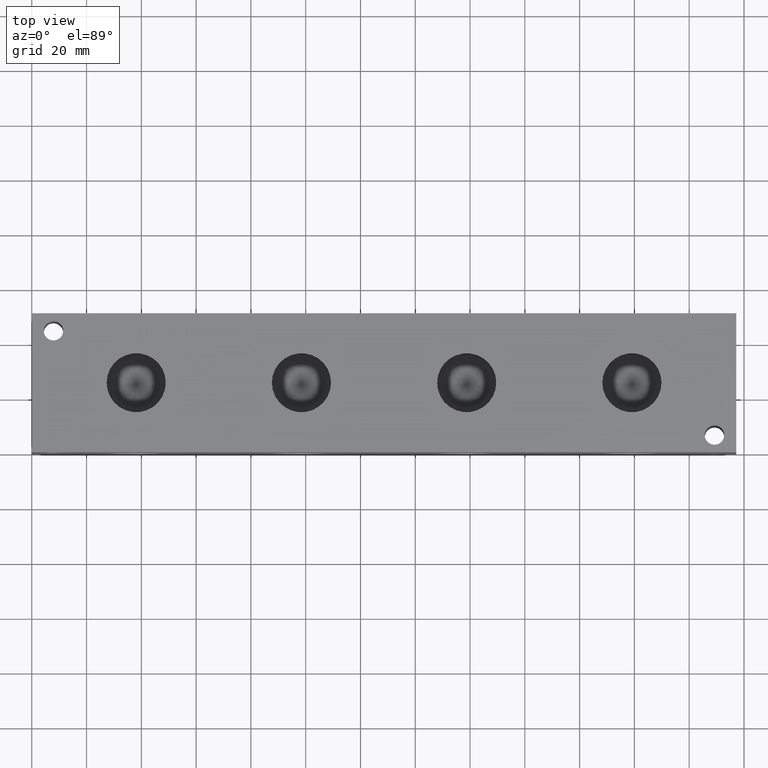
[diagram: clean part render]
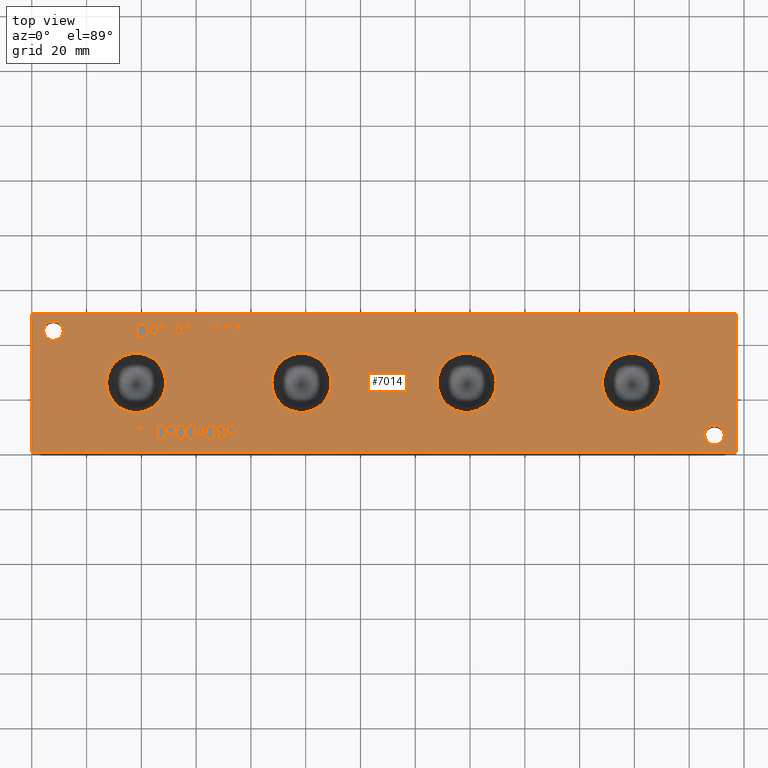
[diagram: same view with one face highlighted and labeled with its STEP entity id]
A machine part, top view. The second image highlights one B-rep face of the part: STEP entity #7014.
In plain terms, the highlighted planar face has unit normal (0, 0, 1).
Its self-contained STEP definition (entity closure, byte-faithful):
#64=CIRCLE('',#7301,3.5687);
#65=CIRCLE('',#7302,3.5687);
#66=CIRCLE('',#7303,3.5687);
#67=CIRCLE('',#7304,3.5687);
#68=CIRCLE('',#7305,10.795);
#69=CIRCLE('',#7306,10.795);
#70=CIRCLE('',#7307,10.795);
#71=CIRCLE('',#7308,10.795);
#72=CIRCLE('',#7309,10.795);
#73=CIRCLE('',#7310,10.795);
#74=CIRCLE('',#7311,10.795);
#75=CIRCLE('',#7312,10.795);
#155=FACE_BOUND('',#967,.T.);
#156=FACE_BOUND('',#968,.T.);
#157=FACE_BOUND('',#969,.T.);
#158=FACE_BOUND('',#970,.T.);
#159=FACE_BOUND('',#971,.T.);
#160=FACE_BOUND('',#972,.T.);
#161=FACE_BOUND('',#973,.T.);
#162=FACE_BOUND('',#974,.T.);
#163=FACE_BOUND('',#975,.T.);
#164=FACE_BOUND('',#976,.T.);
#165=FACE_BOUND('',#977,.T.);
#166=FACE_BOUND('',#978,.T.);
#167=FACE_BOUND('',#979,.T.);
#168=FACE_BOUND('',#980,.T.);
#169=FACE_BOUND('',#981,.T.);
#170=FACE_BOUND('',#982,.T.);
#171=FACE_BOUND('',#983,.T.);
#172=FACE_BOUND('',#984,.T.);
#173=FACE_BOUND('',#985,.T.);
#174=FACE_BOUND('',#986,.T.);
#175=FACE_BOUND('',#987,.T.);
#176=FACE_BOUND('',#988,.T.);
#177=FACE_BOUND('',#989,.T.);
#178=FACE_BOUND('',#990,.T.);
#179=FACE_BOUND('',#991,.T.);
#271=PLANE('',#7300);
#591=FACE_OUTER_BOUND('',#966,.T.);
#966=EDGE_LOOP('',(#5219,#5220,#5221,#5222));
#967=EDGE_LOOP('',(#5223,#5224,#5225,#5226,#5227,#5228,#5229,#5230,#5231,
#5232,#5233,#5234,#5235,#5236,#5237,#5238,#5239,#5240));
#968=EDGE_LOOP('',(#5241,#5242,#5243,#5244,#5245,#5246,#5247,#5248,#5249,
#5250,#5251,#5252,#5253,#5254,#5255,#5256,#5257,#5258));
#969=EDGE_LOOP('',(#5259,#5260,#5261,#5262,#5263,#5264,#5265,#5266,#5267,
#5268,#5269,#5270,#5271));
#970=EDGE_LOOP('',(#5272,#5273,#5274,#5275,#5276,#5277,#5278,#5279));
#971=EDGE_LOOP('',(#5280,#5281,#5282,#5283,#5284,#5285,#5286));
#972=EDGE_LOOP('',(#5287,#5288,#5289,#5290,#5291,#5292,#5293,#5294));
#973=EDGE_LOOP('',(#5295,#5296,#5297,#5298,#5299,#5300,#5301,#5302,#5303,
#5304));
#974=EDGE_LOOP('',(#5305,#5306,#5307,#5308,#5309,#5310,#5311,#5312,#5313,
#5314,#5315,#5316,#5317,#5318,#5319,#5320,#5321,#5322));
#975=EDGE_LOOP('',(#5323,#5324,#5325,#5326,#5327,#5328,#5329,#5330,#5331,
#5332,#5333,#5334,#5335,#5336,#5337,#5338,#5339,#5340));
#976=EDGE_LOOP('',(#5341,#5342));
#977=EDGE_LOOP('',(#5343,#5344));
#978=EDGE_LOOP('',(#5345,#5346));
#979=EDGE_LOOP('',(#5347,#5348));
#980=EDGE_LOOP('',(#5349,#5350));
#981=EDGE_LOOP('',(#5351,#5352));
#982=EDGE_LOOP('',(#5353,#5354,#5355,#5356,#5357,#5358,#5359,#5360,#5361,
#5362,#5363));
#983=EDGE_LOOP('',(#5364,#5365,#5366,#5367));
#984=EDGE_LOOP('',(#5368,#5369,#5370,#5371,#5372,#5373,#5374,#5375,#5376,
#5377,#5378));
#985=EDGE_LOOP('',(#5379,#5380,#5381,#5382));
#986=EDGE_LOOP('',(#5383,#5384,#5385,#5386));
#987=EDGE_LOOP('',(#5387,#5388,#5389,#5390,#5391,#5392,#5393,#5394,#5395,
#5396,#5397,#5398,#5399,#5400));
#988=EDGE_LOOP('',(#5401,#5402,#5403,#5404));
#989=EDGE_LOOP('',(#5405,#5406,#5407,#5408,#5409,#5410,#5411,#5412,#5413,
#5414,#5415,#5416,#5417,#5418,#5419,#5420,#5421,#5422));
#990=EDGE_LOOP('',(#5423,#5424,#5425,#5426,#5427,#5428,#5429,#5430,#5431,
#5432,#5433,#5434));
#991=EDGE_LOOP('',(#5435,#5436,#5437,#5438,#5439,#5440,#5441,#5442,#5443));
#1238=LINE('',#9141,#1931);
#1241=LINE('',#9147,#1934);
#1244=LINE('',#9153,#1937);
#1247=LINE('',#9159,#1940);
#1250=LINE('',#9165,#1943);
#1254=LINE('',#9208,#1947);
#1258=LINE('',#9216,#1951);
#1261=LINE('',#9222,#1954);
#1264=LINE('',#9228,#1957);
#1267=LINE('',#9234,#1960);
#1270=LINE('',#9240,#1963);
#1273=LINE('',#9246,#1966);
#1276=LINE('',#9252,#1969);
#1279=LINE('',#9258,#1972);
#1282=LINE('',#9264,#1975);
#1285=LINE('',#9270,#1978);
#1288=LINE('',#9275,#1981);
#1290=LINE('',#9281,#1983);
#1294=LINE('',#9289,#1987);
#1297=LINE('',#9295,#1990);
#1300=LINE('',#9301,#1993);
#1303=LINE('',#9307,#1996);
#1306=LINE('',#9313,#1999);
#1309=LINE('',#9319,#2002);
#1312=LINE('',#9325,#2005);
#1315=LINE('',#9331,#2008);
#1318=LINE('',#9337,#2011);
#1321=LINE('',#9343,#2014);
#1324=LINE('',#9349,#2017);
#1327=LINE('',#9355,#2020);
#1330=LINE('',#9361,#2023);
#1333=LINE('',#9367,#2026);
#1336=LINE('',#9373,#2029);
#1339=LINE('',#9379,#2032);
#1342=LINE('',#9384,#2035);
#1369=LINE('',#9849,#2062);
#1372=LINE('',#9855,#2065);
#1414=LINE('',#10469,#2107);
#1418=LINE('',#10477,#2111);
#1421=LINE('',#10483,#2114);
#1424=LINE('',#10489,#2117);
#1427=LINE('',#10495,#2120);
#1430=LINE('',#10501,#2123);
#1433=LINE('',#10507,#2126);
#1436=LINE('',#10513,#2129);
#1439=LINE('',#10519,#2132);
#1442=LINE('',#10525,#2135);
#1445=LINE('',#10530,#2138);
#1472=LINE('',#10995,#2165);
#1479=LINE('',#11077,#2172);
#1484=LINE('',#11139,#2177);
#1485=LINE('',#11141,#2178);
#1486=LINE('',#11143,#2179);
#1487=LINE('',#11144,#2180);
#1488=LINE('',#11147,#2181);
#1489=LINE('',#11149,#2182);
#1490=LINE('',#11151,#2183);
#1491=LINE('',#11153,#2184);
#1492=LINE('',#11155,#2185);
#1493=LINE('',#11157,#2186);
#1494=LINE('',#11159,#2187);
#1495=LINE('',#11161,#2188);
#1496=LINE('',#11163,#2189);
#1497=LINE('',#11165,#2190);
#1498=LINE('',#11167,#2191);
#1499=LINE('',#11169,#2192);
#1500=LINE('',#11171,#2193);
#1501=LINE('',#11173,#2194);
#1502=LINE('',#11175,#2195);
#1503=LINE('',#11177,#2196);
#1504=LINE('',#11179,#2197);
#1505=LINE('',#11180,#2198);
#1506=LINE('',#11183,#2199);
#1507=LINE('',#11185,#2200);
#1508=LINE('',#11187,#2201);
#1509=LINE('',#11189,#2202);
#1510=LINE('',#11191,#2203);
#1511=LINE('',#11193,#2204);
#1512=LINE('',#11195,#2205);
#1513=LINE('',#11197,#2206);
#1514=LINE('',#11199,#2207);
#1515=LINE('',#11201,#2208);
#1516=LINE('',#11203,#2209);
#1517=LINE('',#11205,#2210);
#1518=LINE('',#11207,#2211);
#1519=LINE('',#11209,#2212);
#1520=LINE('',#11211,#2213);
#1521=LINE('',#11213,#2214);
#1522=LINE('',#11215,#2215);
#1523=LINE('',#11216,#2216);
#1524=LINE('',#11219,#2217);
#1525=LINE('',#11221,#2218);
#1526=LINE('',#11223,#2219);
#1527=LINE('',#11225,#2220);
#1528=LINE('',#11227,#2221);
#1529=LINE('',#11229,#2222);
#1530=LINE('',#11231,#2223);
#1531=LINE('',#11233,#2224);
#1532=LINE('',#11235,#2225);
#1533=LINE('',#11237,#2226);
#1534=LINE('',#11239,#2227);
#1535=LINE('',#11241,#2228);
#1536=LINE('',#11242,#2229);
#1537=LINE('',#11245,#2230);
#1538=LINE('',#11247,#2231);
#1539=LINE('',#11249,#2232);
#1540=LINE('',#11251,#2233);
#1541=LINE('',#11253,#2234);
#1542=LINE('',#11255,#2235);
#1543=LINE('',#11257,#2236);
#1544=LINE('',#11258,#2237);
#1545=LINE('',#11276,#2238);
#1546=LINE('',#11278,#2239);
#1547=LINE('',#11280,#2240);
#1548=LINE('',#11287,#2241);
#1549=LINE('',#11289,#2242);
#1550=LINE('',#11291,#2243);
#1551=LINE('',#11293,#2244);
#1552=LINE('',#11295,#2245);
#1553=LINE('',#11297,#2246);
#1554=LINE('',#11299,#2247);
#1555=LINE('',#11300,#2248);
#1556=LINE('',#11303,#2249);
#1557=LINE('',#11305,#2250);
#1558=LINE('',#11307,#2251);
#1559=LINE('',#11309,#2252);
#1560=LINE('',#11311,#2253);
#1561=LINE('',#11313,#2254);
#1562=LINE('',#11315,#2255);
#1563=LINE('',#11317,#2256);
#1564=LINE('',#11319,#2257);
#1565=LINE('',#11320,#2258);
#1566=LINE('',#11323,#2259);
#1567=LINE('',#11325,#2260);
#1568=LINE('',#11327,#2261);
#1569=LINE('',#11329,#2262);
#1570=LINE('',#11331,#2263);
#1571=LINE('',#11333,#2264);
#1572=LINE('',#11335,#2265);
#1573=LINE('',#11337,#2266);
#1574=LINE('',#11339,#2267);
#1575=LINE('',#11341,#2268);
#1576=LINE('',#11343,#2269);
#1577=LINE('',#11345,#2270);
#1578=LINE('',#11347,#2271);
#1579=LINE('',#11349,#2272);
#1580=LINE('',#11351,#2273);
#1581=LINE('',#11353,#2274);
#1582=LINE('',#11355,#2275);
#1583=LINE('',#11356,#2276);
#1584=LINE('',#11359,#2277);
#1585=LINE('',#11361,#2278);
#1586=LINE('',#11363,#2279);
#1587=LINE('',#11365,#2280);
#1588=LINE('',#11367,#2281);
#1589=LINE('',#11369,#2282);
#1590=LINE('',#11371,#2283);
#1591=LINE('',#11373,#2284);
#1592=LINE('',#11375,#2285);
#1593=LINE('',#11377,#2286);
#1594=LINE('',#11379,#2287);
#1595=LINE('',#11381,#2288);
#1596=LINE('',#11383,#2289);
#1597=LINE('',#11385,#2290);
#1598=LINE('',#11387,#2291);
#1599=LINE('',#11389,#2292);
#1600=LINE('',#11391,#2293);
#1601=LINE('',#11392,#2294);
#1931=VECTOR('',#7618,10.);
#1934=VECTOR('',#7623,10.);
#1937=VECTOR('',#7628,10.);
#1940=VECTOR('',#7633,10.);
#1943=VECTOR('',#7638,10.);
#1947=VECTOR('',#7646,10.);
#1951=VECTOR('',#7652,10.);
#1954=VECTOR('',#7657,10.);
#1957=VECTOR('',#7662,10.);
#1960=VECTOR('',#7667,10.);
#1963=VECTOR('',#7672,10.);
#1966=VECTOR('',#7677,10.);
#1969=VECTOR('',#7682,10.);
#1972=VECTOR('',#7687,10.);
#1975=VECTOR('',#7692,10.);
#1978=VECTOR('',#7697,10.);
#1981=VECTOR('',#7702,10.);
#1983=VECTOR('',#7708,10.);
#1987=VECTOR('',#7714,10.);
#1990=VECTOR('',#7719,10.);
#1993=VECTOR('',#7724,10.);
#1996=VECTOR('',#7729,10.);
#1999=VECTOR('',#7734,10.);
#2002=VECTOR('',#7739,10.);
#2005=VECTOR('',#7744,10.);
#2008=VECTOR('',#7749,10.);
#2011=VECTOR('',#7754,10.);
#2014=VECTOR('',#7759,10.);
#2017=VECTOR('',#7764,10.);
#2020=VECTOR('',#7769,10.);
#2023=VECTOR('',#7774,10.);
#2026=VECTOR('',#7779,10.);
#2029=VECTOR('',#7784,10.);
#2032=VECTOR('',#7789,10.);
#2035=VECTOR('',#7794,10.);
#2062=VECTOR('',#7827,10.);
#2065=VECTOR('',#7832,10.);
#2107=VECTOR('',#7888,10.);
#2111=VECTOR('',#7894,10.);
#2114=VECTOR('',#7899,10.);
#2117=VECTOR('',#7904,10.);
#2120=VECTOR('',#7909,10.);
#2123=VECTOR('',#7914,10.);
#2126=VECTOR('',#7919,10.);
#2129=VECTOR('',#7924,10.);
#2132=VECTOR('',#7929,10.);
#2135=VECTOR('',#7934,10.);
#2138=VECTOR('',#7939,10.);
#2165=VECTOR('',#7972,10.);
#2172=VECTOR('',#7981,10.);
#2177=VECTOR('',#7990,10.);
#2178=VECTOR('',#7991,10.);
#2179=VECTOR('',#7992,10.);
#2180=VECTOR('',#7993,10.);
#2181=VECTOR('',#7994,10.);
#2182=VECTOR('',#7995,10.);
#2183=VECTOR('',#7996,10.);
#2184=VECTOR('',#7997,10.);
#2185=VECTOR('',#7998,10.);
#2186=VECTOR('',#7999,10.);
#2187=VECTOR('',#8000,10.);
#2188=VECTOR('',#8001,10.);
#2189=VECTOR('',#8002,10.);
#2190=VECTOR('',#8003,10.);
#2191=VECTOR('',#8004,10.);
#2192=VECTOR('',#8005,10.);
#2193=VECTOR('',#8006,10.);
#2194=VECTOR('',#8007,10.);
#2195=VECTOR('',#8008,10.);
#2196=VECTOR('',#8009,10.);
#2197=VECTOR('',#8010,10.);
#2198=VECTOR('',#8011,10.);
#2199=VECTOR('',#8012,10.);
#2200=VECTOR('',#8013,10.);
#2201=VECTOR('',#8014,10.);
#2202=VECTOR('',#8015,10.);
#2203=VECTOR('',#8016,10.);
#2204=VECTOR('',#8017,10.);
#2205=VECTOR('',#8018,10.);
#2206=VECTOR('',#8019,10.);
#2207=VECTOR('',#8020,10.);
#2208=VECTOR('',#8021,10.);
#2209=VECTOR('',#8022,10.);
#2210=VECTOR('',#8023,10.);
#2211=VECTOR('',#8024,10.);
#2212=VECTOR('',#8025,10.);
#2213=VECTOR('',#8026,10.);
#2214=VECTOR('',#8027,10.);
#2215=VECTOR('',#8028,10.);
#2216=VECTOR('',#8029,10.);
#2217=VECTOR('',#8030,10.);
#2218=VECTOR('',#8031,10.);
#2219=VECTOR('',#8032,10.);
#2220=VECTOR('',#8033,10.);
#2221=VECTOR('',#8034,10.);
#2222=VECTOR('',#8035,10.);
#2223=VECTOR('',#8036,10.);
#2224=VECTOR('',#8037,10.);
#2225=VECTOR('',#8038,10.);
#2226=VECTOR('',#8039,10.);
#2227=VECTOR('',#8040,10.);
#2228=VECTOR('',#8041,10.);
#2229=VECTOR('',#8042,10.);
#2230=VECTOR('',#8043,10.);
#2231=VECTOR('',#8044,10.);
#2232=VECTOR('',#8045,10.);
#2233=VECTOR('',#8046,10.);
#2234=VECTOR('',#8047,10.);
#2235=VECTOR('',#8048,10.);
#2236=VECTOR('',#8049,10.);
#2237=VECTOR('',#8050,10.);
#2238=VECTOR('',#8051,10.);
#2239=VECTOR('',#8052,10.);
#2240=VECTOR('',#8053,10.);
#2241=VECTOR('',#8054,10.);
#2242=VECTOR('',#8055,10.);
#2243=VECTOR('',#8056,10.);
#2244=VECTOR('',#8057,10.);
#2245=VECTOR('',#8058,10.);
#2246=VECTOR('',#8059,10.);
#2247=VECTOR('',#8060,10.);
#2248=VECTOR('',#8061,10.);
#2249=VECTOR('',#8062,10.);
#2250=VECTOR('',#8063,10.);
#2251=VECTOR('',#8064,10.);
#2252=VECTOR('',#8065,10.);
#2253=VECTOR('',#8066,10.);
#2254=VECTOR('',#8067,10.);
#2255=VECTOR('',#8068,10.);
#2256=VECTOR('',#8069,10.);
#2257=VECTOR('',#8070,10.);
#2258=VECTOR('',#8071,10.);
#2259=VECTOR('',#8072,10.);
#2260=VECTOR('',#8073,10.);
#2261=VECTOR('',#8074,10.);
#2262=VECTOR('',#8075,10.);
#2263=VECTOR('',#8076,10.);
#2264=VECTOR('',#8077,10.);
#2265=VECTOR('',#8078,10.);
#2266=VECTOR('',#8079,10.);
#2267=VECTOR('',#8080,10.);
#2268=VECTOR('',#8081,10.);
#2269=VECTOR('',#8082,10.);
#2270=VECTOR('',#8083,10.);
#2271=VECTOR('',#8084,10.);
#2272=VECTOR('',#8085,10.);
#2273=VECTOR('',#8086,10.);
#2274=VECTOR('',#8087,10.);
#2275=VECTOR('',#8088,10.);
#2276=VECTOR('',#8089,10.);
#2277=VECTOR('',#8090,10.);
#2278=VECTOR('',#8091,10.);
#2279=VECTOR('',#8092,10.);
#2280=VECTOR('',#8093,10.);
#2281=VECTOR('',#8094,10.);
#2282=VECTOR('',#8095,10.);
#2283=VECTOR('',#8096,10.);
#2284=VECTOR('',#8097,10.);
#2285=VECTOR('',#8098,10.);
#2286=VECTOR('',#8099,10.);
#2287=VECTOR('',#8100,10.);
#2288=VECTOR('',#8101,10.);
#2289=VECTOR('',#8102,10.);
#2290=VECTOR('',#8103,10.);
#2291=VECTOR('',#8104,10.);
#2292=VECTOR('',#8105,10.);
#2293=VECTOR('',#8106,10.);
#2294=VECTOR('',#8107,10.);
#2616=B_SPLINE_CURVE_WITH_KNOTS('',2,(#9108,#9109,#9110,#9111),
 .UNSPECIFIED.,.F.,.F.,(3,1,3),(0.,1.,2.),.UNSPECIFIED.);
#2618=B_SPLINE_CURVE_WITH_KNOTS('',2,(#9129,#9130,#9131,#9132),
 .UNSPECIFIED.,.F.,.F.,(3,1,3),(0.,1.,2.),.UNSPECIFIED.);
#2620=B_SPLINE_CURVE_WITH_KNOTS('',2,(#9178,#9179,#9180,#9181),
 .UNSPECIFIED.,.F.,.F.,(3,1,3),(0.,1.,2.),.UNSPECIFIED.);
#2622=B_SPLINE_CURVE_WITH_KNOTS('',2,(#9196,#9197,#9198,#9199),
 .UNSPECIFIED.,.F.,.F.,(3,1,3),(0.,1.,2.),.UNSPECIFIED.);
#2640=B_SPLINE_CURVE_WITH_KNOTS('',2,(#9549,#9550,#9551,#9552),
 .UNSPECIFIED.,.F.,.F.,(3,1,3),(0.,1.,2.),.UNSPECIFIED.);
#2642=B_SPLINE_CURVE_WITH_KNOTS('',2,(#9570,#9571,#9572,#9573),
 .UNSPECIFIED.,.F.,.F.,(3,1,3),(0.,1.,2.),.UNSPECIFIED.);
#2644=B_SPLINE_CURVE_WITH_KNOTS('',2,(#9589,#9590,#9591,#9592),
 .UNSPECIFIED.,.F.,.F.,(3,1,3),(0.,1.,2.),.UNSPECIFIED.);
#2646=B_SPLINE_CURVE_WITH_KNOTS('',2,(#9607,#9608,#9609,#9610),
 .UNSPECIFIED.,.F.,.F.,(3,1,3),(0.,1.,2.),.UNSPECIFIED.);
#2662=B_SPLINE_CURVE_WITH_KNOTS('',2,(#9759,#9760,#9761,#9762),
 .UNSPECIFIED.,.F.,.F.,(3,1,3),(0.,1.,2.),.UNSPECIFIED.);
#2664=B_SPLINE_CURVE_WITH_KNOTS('',2,(#9780,#9781,#9782,#9783),
 .UNSPECIFIED.,.F.,.F.,(3,1,3),(0.,1.,2.),.UNSPECIFIED.);
#2666=B_SPLINE_CURVE_WITH_KNOTS('',2,(#9799,#9800,#9801,#9802),
 .UNSPECIFIED.,.F.,.F.,(3,1,3),(0.,1.,2.),.UNSPECIFIED.);
#2668=B_SPLINE_CURVE_WITH_KNOTS('',2,(#9818,#9819,#9820,#9821),
 .UNSPECIFIED.,.F.,.F.,(3,1,3),(0.,1.,2.),.UNSPECIFIED.);
#2670=B_SPLINE_CURVE_WITH_KNOTS('',2,(#9837,#9838,#9839,#9840),
 .UNSPECIFIED.,.F.,.F.,(3,1,3),(0.,1.,2.),.UNSPECIFIED.);
#2672=B_SPLINE_CURVE_WITH_KNOTS('',2,(#9868,#9869,#9870,#9871),
 .UNSPECIFIED.,.F.,.F.,(3,1,3),(0.,1.,2.),.UNSPECIFIED.);
#2674=B_SPLINE_CURVE_WITH_KNOTS('',2,(#9887,#9888,#9889,#9890),
 .UNSPECIFIED.,.F.,.F.,(3,1,3),(0.,1.,2.),.UNSPECIFIED.);
#2676=B_SPLINE_CURVE_WITH_KNOTS('',2,(#9906,#9907,#9908,#9909),
 .UNSPECIFIED.,.F.,.F.,(3,1,3),(0.,1.,2.),.UNSPECIFIED.);
#2678=B_SPLINE_CURVE_WITH_KNOTS('',2,(#9925,#9926,#9927,#9928),
 .UNSPECIFIED.,.F.,.F.,(3,1,3),(0.,1.,2.),.UNSPECIFIED.);
#2680=B_SPLINE_CURVE_WITH_KNOTS('',2,(#9944,#9945,#9946,#9947),
 .UNSPECIFIED.,.F.,.F.,(3,1,3),(0.,1.,2.),.UNSPECIFIED.);
#2682=B_SPLINE_CURVE_WITH_KNOTS('',2,(#9963,#9964,#9965,#9966),
 .UNSPECIFIED.,.F.,.F.,(3,1,3),(0.,1.,2.),.UNSPECIFIED.);
#2684=B_SPLINE_CURVE_WITH_KNOTS('',2,(#9981,#9982,#9983,#9984),
 .UNSPECIFIED.,.F.,.F.,(3,1,3),(0.,1.,2.),.UNSPECIFIED.);
#2702=B_SPLINE_CURVE_WITH_KNOTS('',2,(#10152,#10153,#10154,#10155),
 .UNSPECIFIED.,.F.,.F.,(3,1,3),(0.,1.,2.),.UNSPECIFIED.);
#2704=B_SPLINE_CURVE_WITH_KNOTS('',2,(#10173,#10174,#10175,#10176),
 .UNSPECIFIED.,.F.,.F.,(3,1,3),(0.,1.,2.),.UNSPECIFIED.);
#2706=B_SPLINE_CURVE_WITH_KNOTS('',2,(#10192,#10193,#10194,#10195),
 .UNSPECIFIED.,.F.,.F.,(3,1,3),(0.,1.,2.),.UNSPECIFIED.);
#2708=B_SPLINE_CURVE_WITH_KNOTS('',2,(#10210,#10211,#10212,#10213),
 .UNSPECIFIED.,.F.,.F.,(3,1,3),(0.,1.,2.),.UNSPECIFIED.);
#2726=B_SPLINE_CURVE_WITH_KNOTS('',2,(#10381,#10382,#10383,#10384),
 .UNSPECIFIED.,.F.,.F.,(3,1,3),(0.,1.,2.),.UNSPECIFIED.);
#2728=B_SPLINE_CURVE_WITH_KNOTS('',2,(#10402,#10403,#10404,#10405),
 .UNSPECIFIED.,.F.,.F.,(3,1,3),(0.,1.,2.),.UNSPECIFIED.);
#2730=B_SPLINE_CURVE_WITH_KNOTS('',2,(#10421,#10422,#10423,#10424),
 .UNSPECIFIED.,.F.,.F.,(3,1,3),(0.,1.,2.),.UNSPECIFIED.);
#2732=B_SPLINE_CURVE_WITH_KNOTS('',2,(#10439,#10440,#10441,#10442),
 .UNSPECIFIED.,.F.,.F.,(3,1,3),(0.,1.,2.),.UNSPECIFIED.);
#2750=B_SPLINE_CURVE_WITH_KNOTS('',2,(#10695,#10696,#10697,#10698),
 .UNSPECIFIED.,.F.,.F.,(3,1,3),(0.,1.,2.),.UNSPECIFIED.);
#2752=B_SPLINE_CURVE_WITH_KNOTS('',2,(#10716,#10717,#10718,#10719),
 .UNSPECIFIED.,.F.,.F.,(3,1,3),(0.,1.,2.),.UNSPECIFIED.);
#2754=B_SPLINE_CURVE_WITH_KNOTS('',2,(#10735,#10736,#10737,#10738),
 .UNSPECIFIED.,.F.,.F.,(3,1,3),(0.,1.,2.),.UNSPECIFIED.);
#2756=B_SPLINE_CURVE_WITH_KNOTS('',2,(#10753,#10754,#10755,#10756),
 .UNSPECIFIED.,.F.,.F.,(3,1,3),(0.,1.,2.),.UNSPECIFIED.);
#2778=B_SPLINE_CURVE_WITH_KNOTS('',2,(#10962,#10963,#10964,#10965),
 .UNSPECIFIED.,.F.,.F.,(3,1,3),(0.,1.,2.),.UNSPECIFIED.);
#2780=B_SPLINE_CURVE_WITH_KNOTS('',2,(#10983,#10984,#10985,#10986),
 .UNSPECIFIED.,.F.,.F.,(3,1,3),(0.,1.,2.),.UNSPECIFIED.);
#2782=B_SPLINE_CURVE_WITH_KNOTS('',2,(#11008,#11009,#11010,#11011),
 .UNSPECIFIED.,.F.,.F.,(3,1,3),(0.,1.,2.),.UNSPECIFIED.);
#2784=B_SPLINE_CURVE_WITH_KNOTS('',2,(#11027,#11028,#11029,#11030),
 .UNSPECIFIED.,.F.,.F.,(3,1,3),(0.,1.,2.),.UNSPECIFIED.);
#2786=B_SPLINE_CURVE_WITH_KNOTS('',2,(#11046,#11047,#11048,#11049),
 .UNSPECIFIED.,.F.,.F.,(3,1,3),(0.,1.,2.),.UNSPECIFIED.);
#2788=B_SPLINE_CURVE_WITH_KNOTS('',2,(#11065,#11066,#11067,#11068),
 .UNSPECIFIED.,.F.,.F.,(3,1,3),(0.,1.,2.),.UNSPECIFIED.);
#2790=B_SPLINE_CURVE_WITH_KNOTS('',2,(#11090,#11091,#11092,#11093),
 .UNSPECIFIED.,.F.,.F.,(3,1,3),(0.,1.,2.),.UNSPECIFIED.);
#2792=B_SPLINE_CURVE_WITH_KNOTS('',2,(#11109,#11110,#11111,#11112),
 .UNSPECIFIED.,.F.,.F.,(3,1,3),(0.,1.,2.),.UNSPECIFIED.);
#2794=B_SPLINE_CURVE_WITH_KNOTS('',2,(#11127,#11128,#11129,#11130),
 .UNSPECIFIED.,.F.,.F.,(3,1,3),(0.,1.,2.),.UNSPECIFIED.);
#2796=B_SPLINE_CURVE_WITH_KNOTS('',2,(#11261,#11262,#11263,#11264),
 .UNSPECIFIED.,.F.,.F.,(3,1,3),(0.,1.,2.),.UNSPECIFIED.);
#2797=B_SPLINE_CURVE_WITH_KNOTS('',2,(#11266,#11267,#11268,#11269),
 .UNSPECIFIED.,.F.,.F.,(3,1,3),(0.,1.,2.),.UNSPECIFIED.);
#2798=B_SPLINE_CURVE_WITH_KNOTS('',2,(#11271,#11272,#11273,#11274),
 .UNSPECIFIED.,.F.,.F.,(3,1,3),(0.,1.,2.),.UNSPECIFIED.);
#2799=B_SPLINE_CURVE_WITH_KNOTS('',2,(#11281,#11282,#11283,#11284),
 .UNSPECIFIED.,.F.,.F.,(3,1,3),(0.,1.,2.),.UNSPECIFIED.);
#2826=VERTEX_POINT('',#9106);
#2827=VERTEX_POINT('',#9107);
#2830=VERTEX_POINT('',#9128);
#2832=VERTEX_POINT('',#9140);
#2834=VERTEX_POINT('',#9146);
#2836=VERTEX_POINT('',#9152);
#2838=VERTEX_POINT('',#9158);
#2840=VERTEX_POINT('',#9164);
#2842=VERTEX_POINT('',#9177);
#2844=VERTEX_POINT('',#9206);
#2845=VERTEX_POINT('',#9207);
#2848=VERTEX_POINT('',#9215);
#2850=VERTEX_POINT('',#9221);
#2852=VERTEX_POINT('',#9227);
#2854=VERTEX_POINT('',#9233);
#2856=VERTEX_POINT('',#9239);
#2858=VERTEX_POINT('',#9245);
#2860=VERTEX_POINT('',#9251);
#2862=VERTEX_POINT('',#9257);
#2864=VERTEX_POINT('',#9263);
#2866=VERTEX_POINT('',#9269);
#2868=VERTEX_POINT('',#9279);
#2869=VERTEX_POINT('',#9280);
#2872=VERTEX_POINT('',#9288);
#2874=VERTEX_POINT('',#9294);
#2876=VERTEX_POINT('',#9300);
#2878=VERTEX_POINT('',#9306);
#2880=VERTEX_POINT('',#9312);
#2882=VERTEX_POINT('',#9318);
#2884=VERTEX_POINT('',#9324);
#2886=VERTEX_POINT('',#9330);
#2888=VERTEX_POINT('',#9336);
#2890=VERTEX_POINT('',#9342);
#2892=VERTEX_POINT('',#9348);
#2894=VERTEX_POINT('',#9354);
#2896=VERTEX_POINT('',#9360);
#2898=VERTEX_POINT('',#9366);
#2900=VERTEX_POINT('',#9372);
#2902=VERTEX_POINT('',#9378);
#2920=VERTEX_POINT('',#9547);
#2921=VERTEX_POINT('',#9548);
#2924=VERTEX_POINT('',#9569);
#2926=VERTEX_POINT('',#9588);
#2942=VERTEX_POINT('',#9757);
#2943=VERTEX_POINT('',#9758);
#2946=VERTEX_POINT('',#9779);
#2948=VERTEX_POINT('',#9798);
#2950=VERTEX_POINT('',#9817);
#2952=VERTEX_POINT('',#9836);
#2954=VERTEX_POINT('',#9848);
#2956=VERTEX_POINT('',#9854);
#2958=VERTEX_POINT('',#9867);
#2960=VERTEX_POINT('',#9886);
#2962=VERTEX_POINT('',#9905);
#2964=VERTEX_POINT('',#9924);
#2966=VERTEX_POINT('',#9943);
#2968=VERTEX_POINT('',#9962);
#2986=VERTEX_POINT('',#10150);
#2987=VERTEX_POINT('',#10151);
#2990=VERTEX_POINT('',#10172);
#2992=VERTEX_POINT('',#10191);
#3010=VERTEX_POINT('',#10379);
#3011=VERTEX_POINT('',#10380);
#3014=VERTEX_POINT('',#10401);
#3016=VERTEX_POINT('',#10420);
#3024=VERTEX_POINT('',#10467);
#3025=VERTEX_POINT('',#10468);
#3028=VERTEX_POINT('',#10476);
#3030=VERTEX_POINT('',#10482);
#3032=VERTEX_POINT('',#10488);
#3034=VERTEX_POINT('',#10494);
#3036=VERTEX_POINT('',#10500);
#3038=VERTEX_POINT('',#10506);
#3040=VERTEX_POINT('',#10512);
#3042=VERTEX_POINT('',#10518);
#3044=VERTEX_POINT('',#10524);
#3062=VERTEX_POINT('',#10693);
#3063=VERTEX_POINT('',#10694);
#3066=VERTEX_POINT('',#10715);
#3068=VERTEX_POINT('',#10734);
#3090=VERTEX_POINT('',#10960);
#3091=VERTEX_POINT('',#10961);
#3094=VERTEX_POINT('',#10982);
#3096=VERTEX_POINT('',#10994);
#3098=VERTEX_POINT('',#11007);
#3100=VERTEX_POINT('',#11026);
#3102=VERTEX_POINT('',#11045);
#3104=VERTEX_POINT('',#11064);
#3106=VERTEX_POINT('',#11076);
#3108=VERTEX_POINT('',#11089);
#3110=VERTEX_POINT('',#11108);
#3112=VERTEX_POINT('',#11137);
#3113=VERTEX_POINT('',#11138);
#3114=VERTEX_POINT('',#11140);
#3115=VERTEX_POINT('',#11142);
#3116=VERTEX_POINT('',#11145);
#3117=VERTEX_POINT('',#11146);
#3118=VERTEX_POINT('',#11148);
#3119=VERTEX_POINT('',#11150);
#3120=VERTEX_POINT('',#11152);
#3121=VERTEX_POINT('',#11154);
#3122=VERTEX_POINT('',#11156);
#3123=VERTEX_POINT('',#11158);
#3124=VERTEX_POINT('',#11160);
#3125=VERTEX_POINT('',#11162);
#3126=VERTEX_POINT('',#11164);
#3127=VERTEX_POINT('',#11166);
#3128=VERTEX_POINT('',#11168);
#3129=VERTEX_POINT('',#11170);
#3130=VERTEX_POINT('',#11172);
#3131=VERTEX_POINT('',#11174);
#3132=VERTEX_POINT('',#11176);
#3133=VERTEX_POINT('',#11178);
#3134=VERTEX_POINT('',#11181);
#3135=VERTEX_POINT('',#11182);
#3136=VERTEX_POINT('',#11184);
#3137=VERTEX_POINT('',#11186);
#3138=VERTEX_POINT('',#11188);
#3139=VERTEX_POINT('',#11190);
#3140=VERTEX_POINT('',#11192);
#3141=VERTEX_POINT('',#11194);
#3142=VERTEX_POINT('',#11196);
#3143=VERTEX_POINT('',#11198);
#3144=VERTEX_POINT('',#11200);
#3145=VERTEX_POINT('',#11202);
#3146=VERTEX_POINT('',#11204);
#3147=VERTEX_POINT('',#11206);
#3148=VERTEX_POINT('',#11208);
#3149=VERTEX_POINT('',#11210);
#3150=VERTEX_POINT('',#11212);
#3151=VERTEX_POINT('',#11214);
#3152=VERTEX_POINT('',#11217);
#3153=VERTEX_POINT('',#11218);
#3154=VERTEX_POINT('',#11220);
#3155=VERTEX_POINT('',#11222);
#3156=VERTEX_POINT('',#11224);
#3157=VERTEX_POINT('',#11226);
#3158=VERTEX_POINT('',#11228);
#3159=VERTEX_POINT('',#11230);
#3160=VERTEX_POINT('',#11232);
#3161=VERTEX_POINT('',#11234);
#3162=VERTEX_POINT('',#11236);
#3163=VERTEX_POINT('',#11238);
#3164=VERTEX_POINT('',#11240);
#3165=VERTEX_POINT('',#11243);
#3166=VERTEX_POINT('',#11244);
#3167=VERTEX_POINT('',#11246);
#3168=VERTEX_POINT('',#11248);
#3169=VERTEX_POINT('',#11250);
#3170=VERTEX_POINT('',#11252);
#3171=VERTEX_POINT('',#11254);
#3172=VERTEX_POINT('',#11256);
#3173=VERTEX_POINT('',#11259);
#3174=VERTEX_POINT('',#11260);
#3175=VERTEX_POINT('',#11265);
#3176=VERTEX_POINT('',#11270);
#3177=VERTEX_POINT('',#11275);
#3178=VERTEX_POINT('',#11277);
#3179=VERTEX_POINT('',#11279);
#3180=VERTEX_POINT('',#11285);
#3181=VERTEX_POINT('',#11286);
#3182=VERTEX_POINT('',#11288);
#3183=VERTEX_POINT('',#11290);
#3184=VERTEX_POINT('',#11292);
#3185=VERTEX_POINT('',#11294);
#3186=VERTEX_POINT('',#11296);
#3187=VERTEX_POINT('',#11298);
#3188=VERTEX_POINT('',#11301);
#3189=VERTEX_POINT('',#11302);
#3190=VERTEX_POINT('',#11304);
#3191=VERTEX_POINT('',#11306);
#3192=VERTEX_POINT('',#11308);
#3193=VERTEX_POINT('',#11310);
#3194=VERTEX_POINT('',#11312);
#3195=VERTEX_POINT('',#11314);
#3196=VERTEX_POINT('',#11316);
#3197=VERTEX_POINT('',#11318);
#3198=VERTEX_POINT('',#11321);
#3199=VERTEX_POINT('',#11322);
#3200=VERTEX_POINT('',#11324);
#3201=VERTEX_POINT('',#11326);
#3202=VERTEX_POINT('',#11328);
#3203=VERTEX_POINT('',#11330);
#3204=VERTEX_POINT('',#11332);
#3205=VERTEX_POINT('',#11334);
#3206=VERTEX_POINT('',#11336);
#3207=VERTEX_POINT('',#11338);
#3208=VERTEX_POINT('',#11340);
#3209=VERTEX_POINT('',#11342);
#3210=VERTEX_POINT('',#11344);
#3211=VERTEX_POINT('',#11346);
#3212=VERTEX_POINT('',#11348);
#3213=VERTEX_POINT('',#11350);
#3214=VERTEX_POINT('',#11352);
#3215=VERTEX_POINT('',#11354);
#3216=VERTEX_POINT('',#11357);
#3217=VERTEX_POINT('',#11358);
#3218=VERTEX_POINT('',#11360);
#3219=VERTEX_POINT('',#11362);
#3220=VERTEX_POINT('',#11364);
#3221=VERTEX_POINT('',#11366);
#3222=VERTEX_POINT('',#11368);
#3223=VERTEX_POINT('',#11370);
#3224=VERTEX_POINT('',#11372);
#3225=VERTEX_POINT('',#11374);
#3226=VERTEX_POINT('',#11376);
#3227=VERTEX_POINT('',#11378);
#3228=VERTEX_POINT('',#11380);
#3229=VERTEX_POINT('',#11382);
#3230=VERTEX_POINT('',#11384);
#3231=VERTEX_POINT('',#11386);
#3232=VERTEX_POINT('',#11388);
#3233=VERTEX_POINT('',#11390);
#3234=VERTEX_POINT('',#11393);
#3235=VERTEX_POINT('',#11394);
#3236=VERTEX_POINT('',#11397);
#3237=VERTEX_POINT('',#11398);
#3238=VERTEX_POINT('',#11401);
#3239=VERTEX_POINT('',#11402);
#3240=VERTEX_POINT('',#11405);
#3241=VERTEX_POINT('',#11406);
#3242=VERTEX_POINT('',#11409);
#3243=VERTEX_POINT('',#11410);
#3244=VERTEX_POINT('',#11413);
#3245=VERTEX_POINT('',#11414);
#3499=EDGE_CURVE('',#2826,#2827,#2616,.T.);
#3503=EDGE_CURVE('',#2830,#2826,#2618,.T.);
#3506=EDGE_CURVE('',#2832,#2830,#1238,.T.);
#3509=EDGE_CURVE('',#2834,#2832,#1241,.T.);
#3512=EDGE_CURVE('',#2836,#2834,#1244,.T.);
#3515=EDGE_CURVE('',#2838,#2836,#1247,.T.);
#3518=EDGE_CURVE('',#2840,#2838,#1250,.T.);
#3521=EDGE_CURVE('',#2842,#2840,#2620,.T.);
#3524=EDGE_CURVE('',#2827,#2842,#2622,.T.);
#3526=EDGE_CURVE('',#2844,#2845,#1254,.T.);
#3530=EDGE_CURVE('',#2848,#2844,#1258,.T.);
#3533=EDGE_CURVE('',#2850,#2848,#1261,.T.);
#3536=EDGE_CURVE('',#2852,#2850,#1264,.T.);
#3539=EDGE_CURVE('',#2854,#2852,#1267,.T.);
#3542=EDGE_CURVE('',#2856,#2854,#1270,.T.);
#3545=EDGE_CURVE('',#2858,#2856,#1273,.T.);
#3548=EDGE_CURVE('',#2860,#2858,#1276,.T.);
#3551=EDGE_CURVE('',#2862,#2860,#1279,.T.);
#3554=EDGE_CURVE('',#2864,#2862,#1282,.T.);
#3557=EDGE_CURVE('',#2866,#2864,#1285,.T.);
#3560=EDGE_CURVE('',#2845,#2866,#1288,.T.);
#3562=EDGE_CURVE('',#2868,#2869,#1290,.T.);
#3566=EDGE_CURVE('',#2872,#2868,#1294,.T.);
#3569=EDGE_CURVE('',#2874,#2872,#1297,.T.);
#3572=EDGE_CURVE('',#2876,#2874,#1300,.T.);
#3575=EDGE_CURVE('',#2878,#2876,#1303,.T.);
#3578=EDGE_CURVE('',#2880,#2878,#1306,.T.);
#3581=EDGE_CURVE('',#2882,#2880,#1309,.T.);
#3584=EDGE_CURVE('',#2884,#2882,#1312,.T.);
#3587=EDGE_CURVE('',#2886,#2884,#1315,.T.);
#3590=EDGE_CURVE('',#2888,#2886,#1318,.T.);
#3593=EDGE_CURVE('',#2890,#2888,#1321,.T.);
#3596=EDGE_CURVE('',#2892,#2890,#1324,.T.);
#3599=EDGE_CURVE('',#2894,#2892,#1327,.T.);
#3602=EDGE_CURVE('',#2896,#2894,#1330,.T.);
#3605=EDGE_CURVE('',#2898,#2896,#1333,.T.);
#3608=EDGE_CURVE('',#2900,#2898,#1336,.T.);
#3611=EDGE_CURVE('',#2902,#2900,#1339,.T.);
#3614=EDGE_CURVE('',#2869,#2902,#1342,.T.);
#3640=EDGE_CURVE('',#2920,#2921,#2640,.T.);
#3644=EDGE_CURVE('',#2924,#2920,#2642,.T.);
#3647=EDGE_CURVE('',#2926,#2924,#2644,.T.);
#3650=EDGE_CURVE('',#2921,#2926,#2646,.T.);
#3673=EDGE_CURVE('',#2942,#2943,#2662,.T.);
#3677=EDGE_CURVE('',#2946,#2942,#2664,.T.);
#3680=EDGE_CURVE('',#2948,#2946,#2666,.T.);
#3683=EDGE_CURVE('',#2950,#2948,#2668,.T.);
#3686=EDGE_CURVE('',#2952,#2950,#2670,.T.);
#3689=EDGE_CURVE('',#2954,#2952,#1369,.T.);
#3692=EDGE_CURVE('',#2956,#2954,#1372,.T.);
#3695=EDGE_CURVE('',#2958,#2956,#2672,.T.);
#3698=EDGE_CURVE('',#2960,#2958,#2674,.T.);
#3701=EDGE_CURVE('',#2962,#2960,#2676,.T.);
#3704=EDGE_CURVE('',#2964,#2962,#2678,.T.);
#3707=EDGE_CURVE('',#2966,#2964,#2680,.T.);
#3710=EDGE_CURVE('',#2968,#2966,#2682,.T.);
#3713=EDGE_CURVE('',#2943,#2968,#2684,.T.);
#3739=EDGE_CURVE('',#2986,#2987,#2702,.T.);
#3743=EDGE_CURVE('',#2990,#2986,#2704,.T.);
#3746=EDGE_CURVE('',#2992,#2990,#2706,.T.);
#3749=EDGE_CURVE('',#2987,#2992,#2708,.T.);
#3775=EDGE_CURVE('',#3010,#3011,#2726,.T.);
#3779=EDGE_CURVE('',#3014,#3010,#2728,.T.);
#3782=EDGE_CURVE('',#3016,#3014,#2730,.T.);
#3785=EDGE_CURVE('',#3011,#3016,#2732,.T.);
#3796=EDGE_CURVE('',#3024,#3025,#1414,.T.);
#3800=EDGE_CURVE('',#3028,#3024,#1418,.T.);
#3803=EDGE_CURVE('',#3030,#3028,#1421,.T.);
#3806=EDGE_CURVE('',#3032,#3030,#1424,.T.);
#3809=EDGE_CURVE('',#3034,#3032,#1427,.T.);
#3812=EDGE_CURVE('',#3036,#3034,#1430,.T.);
#3815=EDGE_CURVE('',#3038,#3036,#1433,.T.);
#3818=EDGE_CURVE('',#3040,#3038,#1436,.T.);
#3821=EDGE_CURVE('',#3042,#3040,#1439,.T.);
#3824=EDGE_CURVE('',#3044,#3042,#1442,.T.);
#3827=EDGE_CURVE('',#3025,#3044,#1445,.T.);
#3853=EDGE_CURVE('',#3062,#3063,#2750,.T.);
#3857=EDGE_CURVE('',#3066,#3062,#2752,.T.);
#3860=EDGE_CURVE('',#3068,#3066,#2754,.T.);
#3863=EDGE_CURVE('',#3063,#3068,#2756,.T.);
#3895=EDGE_CURVE('',#3090,#3091,#2778,.T.);
#3899=EDGE_CURVE('',#3094,#3090,#2780,.T.);
#3902=EDGE_CURVE('',#3096,#3094,#1472,.T.);
#3905=EDGE_CURVE('',#3098,#3096,#2782,.T.);
#3908=EDGE_CURVE('',#3100,#3098,#2784,.T.);
#3911=EDGE_CURVE('',#3102,#3100,#2786,.T.);
#3914=EDGE_CURVE('',#3104,#3102,#2788,.T.);
#3917=EDGE_CURVE('',#3106,#3104,#1479,.T.);
#3920=EDGE_CURVE('',#3108,#3106,#2790,.T.);
#3923=EDGE_CURVE('',#3110,#3108,#2792,.T.);
#3926=EDGE_CURVE('',#3091,#3110,#2794,.T.);
#3928=EDGE_CURVE('',#3112,#3113,#1484,.T.);
#3929=EDGE_CURVE('',#3113,#3114,#1485,.T.);
#3930=EDGE_CURVE('',#3114,#3115,#1486,.T.);
#3931=EDGE_CURVE('',#3115,#3112,#1487,.T.);
#3932=EDGE_CURVE('',#3116,#3117,#1488,.T.);
#3933=EDGE_CURVE('',#3117,#3118,#1489,.T.);
#3934=EDGE_CURVE('',#3118,#3119,#1490,.T.);
#3935=EDGE_CURVE('',#3119,#3120,#1491,.T.);
#3936=EDGE_CURVE('',#3120,#3121,#1492,.T.);
#3937=EDGE_CURVE('',#3121,#3122,#1493,.T.);
#3938=EDGE_CURVE('',#3122,#3123,#1494,.T.);
#3939=EDGE_CURVE('',#3123,#3124,#1495,.T.);
#3940=EDGE_CURVE('',#3124,#3125,#1496,.T.);
#3941=EDGE_CURVE('',#3125,#3126,#1497,.T.);
#3942=EDGE_CURVE('',#3126,#3127,#1498,.T.);
#3943=EDGE_CURVE('',#3127,#3128,#1499,.T.);
#3944=EDGE_CURVE('',#3128,#3129,#1500,.T.);
#3945=EDGE_CURVE('',#3129,#3130,#1501,.T.);
#3946=EDGE_CURVE('',#3130,#3131,#1502,.T.);
#3947=EDGE_CURVE('',#3131,#3132,#1503,.T.);
#3948=EDGE_CURVE('',#3132,#3133,#1504,.T.);
#3949=EDGE_CURVE('',#3133,#3116,#1505,.T.);
#3950=EDGE_CURVE('',#3134,#3135,#1506,.T.);
#3951=EDGE_CURVE('',#3135,#3136,#1507,.T.);
#3952=EDGE_CURVE('',#3136,#3137,#1508,.T.);
#3953=EDGE_CURVE('',#3137,#3138,#1509,.T.);
#3954=EDGE_CURVE('',#3138,#3139,#1510,.T.);
#3955=EDGE_CURVE('',#3139,#3140,#1511,.T.);
#3956=EDGE_CURVE('',#3140,#3141,#1512,.T.);
#3957=EDGE_CURVE('',#3141,#3142,#1513,.T.);
#3958=EDGE_CURVE('',#3142,#3143,#1514,.T.);
#3959=EDGE_CURVE('',#3143,#3144,#1515,.T.);
#3960=EDGE_CURVE('',#3144,#3145,#1516,.T.);
#3961=EDGE_CURVE('',#3145,#3146,#1517,.T.);
#3962=EDGE_CURVE('',#3146,#3147,#1518,.T.);
#3963=EDGE_CURVE('',#3147,#3148,#1519,.T.);
#3964=EDGE_CURVE('',#3148,#3149,#1520,.T.);
#3965=EDGE_CURVE('',#3149,#3150,#1521,.T.);
#3966=EDGE_CURVE('',#3150,#3151,#1522,.T.);
#3967=EDGE_CURVE('',#3151,#3134,#1523,.T.);
#3968=EDGE_CURVE('',#3152,#3153,#1524,.T.);
#3969=EDGE_CURVE('',#3153,#3154,#1525,.T.);
#3970=EDGE_CURVE('',#3154,#3155,#1526,.T.);
#3971=EDGE_CURVE('',#3155,#3156,#1527,.T.);
#3972=EDGE_CURVE('',#3156,#3157,#1528,.T.);
#3973=EDGE_CURVE('',#3157,#3158,#1529,.T.);
#3974=EDGE_CURVE('',#3158,#3159,#1530,.T.);
#3975=EDGE_CURVE('',#3159,#3160,#1531,.T.);
#3976=EDGE_CURVE('',#3160,#3161,#1532,.T.);
#3977=EDGE_CURVE('',#3161,#3162,#1533,.T.);
#3978=EDGE_CURVE('',#3162,#3163,#1534,.T.);
#3979=EDGE_CURVE('',#3163,#3164,#1535,.T.);
#3980=EDGE_CURVE('',#3164,#3152,#1536,.T.);
#3981=EDGE_CURVE('',#3165,#3166,#1537,.T.);
#3982=EDGE_CURVE('',#3166,#3167,#1538,.T.);
#3983=EDGE_CURVE('',#3167,#3168,#1539,.T.);
#3984=EDGE_CURVE('',#3168,#3169,#1540,.T.);
#3985=EDGE_CURVE('',#3169,#3170,#1541,.T.);
#3986=EDGE_CURVE('',#3170,#3171,#1542,.T.);
#3987=EDGE_CURVE('',#3171,#3172,#1543,.T.);
#3988=EDGE_CURVE('',#3172,#3165,#1544,.T.);
#3989=EDGE_CURVE('',#3173,#3174,#2796,.T.);
#3990=EDGE_CURVE('',#3174,#3175,#2797,.T.);
#3991=EDGE_CURVE('',#3175,#3176,#2798,.T.);
#3992=EDGE_CURVE('',#3176,#3177,#1545,.T.);
#3993=EDGE_CURVE('',#3177,#3178,#1546,.T.);
#3994=EDGE_CURVE('',#3178,#3179,#1547,.T.);
#3995=EDGE_CURVE('',#3179,#3173,#2799,.T.);
#3996=EDGE_CURVE('',#3180,#3181,#1548,.T.);
#3997=EDGE_CURVE('',#3181,#3182,#1549,.T.);
#3998=EDGE_CURVE('',#3182,#3183,#1550,.T.);
#3999=EDGE_CURVE('',#3183,#3184,#1551,.T.);
#4000=EDGE_CURVE('',#3184,#3185,#1552,.T.);
#4001=EDGE_CURVE('',#3185,#3186,#1553,.T.);
#4002=EDGE_CURVE('',#3186,#3187,#1554,.T.);
#4003=EDGE_CURVE('',#3187,#3180,#1555,.T.);
#4004=EDGE_CURVE('',#3188,#3189,#1556,.T.);
#4005=EDGE_CURVE('',#3189,#3190,#1557,.T.);
#4006=EDGE_CURVE('',#3190,#3191,#1558,.T.);
#4007=EDGE_CURVE('',#3191,#3192,#1559,.T.);
#4008=EDGE_CURVE('',#3192,#3193,#1560,.T.);
#4009=EDGE_CURVE('',#3193,#3194,#1561,.T.);
#4010=EDGE_CURVE('',#3194,#3195,#1562,.T.);
#4011=EDGE_CURVE('',#3195,#3196,#1563,.T.);
#4012=EDGE_CURVE('',#3196,#3197,#1564,.T.);
#4013=EDGE_CURVE('',#3197,#3188,#1565,.T.);
#4014=EDGE_CURVE('',#3198,#3199,#1566,.T.);
#4015=EDGE_CURVE('',#3199,#3200,#1567,.T.);
#4016=EDGE_CURVE('',#3200,#3201,#1568,.T.);
#4017=EDGE_CURVE('',#3201,#3202,#1569,.T.);
#4018=EDGE_CURVE('',#3202,#3203,#1570,.T.);
#4019=EDGE_CURVE('',#3203,#3204,#1571,.T.);
#4020=EDGE_CURVE('',#3204,#3205,#1572,.T.);
#4021=EDGE_CURVE('',#3205,#3206,#1573,.T.);
#4022=EDGE_CURVE('',#3206,#3207,#1574,.T.);
#4023=EDGE_CURVE('',#3207,#3208,#1575,.T.);
#4024=EDGE_CURVE('',#3208,#3209,#1576,.T.);
#4025=EDGE_CURVE('',#3209,#3210,#1577,.T.);
#4026=EDGE_CURVE('',#3210,#3211,#1578,.T.);
#4027=EDGE_CURVE('',#3211,#3212,#1579,.T.);
#4028=EDGE_CURVE('',#3212,#3213,#1580,.T.);
#4029=EDGE_CURVE('',#3213,#3214,#1581,.T.);
#4030=EDGE_CURVE('',#3214,#3215,#1582,.T.);
#4031=EDGE_CURVE('',#3215,#3198,#1583,.T.);
#4032=EDGE_CURVE('',#3216,#3217,#1584,.T.);
#4033=EDGE_CURVE('',#3217,#3218,#1585,.T.);
#4034=EDGE_CURVE('',#3218,#3219,#1586,.T.);
#4035=EDGE_CURVE('',#3219,#3220,#1587,.T.);
#4036=EDGE_CURVE('',#3220,#3221,#1588,.T.);
#4037=EDGE_CURVE('',#3221,#3222,#1589,.T.);
#4038=EDGE_CURVE('',#3222,#3223,#1590,.T.);
#4039=EDGE_CURVE('',#3223,#3224,#1591,.T.);
#4040=EDGE_CURVE('',#3224,#3225,#1592,.T.);
#4041=EDGE_CURVE('',#3225,#3226,#1593,.T.);
#4042=EDGE_CURVE('',#3226,#3227,#1594,.T.);
#4043=EDGE_CURVE('',#3227,#3228,#1595,.T.);
#4044=EDGE_CURVE('',#3228,#3229,#1596,.T.);
#4045=EDGE_CURVE('',#3229,#3230,#1597,.T.);
#4046=EDGE_CURVE('',#3230,#3231,#1598,.T.);
#4047=EDGE_CURVE('',#3231,#3232,#1599,.T.);
#4048=EDGE_CURVE('',#3232,#3233,#1600,.T.);
#4049=EDGE_CURVE('',#3233,#3216,#1601,.T.);
#4050=EDGE_CURVE('',#3234,#3235,#64,.T.);
#4051=EDGE_CURVE('',#3235,#3234,#65,.T.);
#4052=EDGE_CURVE('',#3236,#3237,#66,.T.);
#4053=EDGE_CURVE('',#3237,#3236,#67,.T.);
#4054=EDGE_CURVE('',#3238,#3239,#68,.T.);
#4055=EDGE_CURVE('',#3239,#3238,#69,.T.);
#4056=EDGE_CURVE('',#3240,#3241,#70,.T.);
#4057=EDGE_CURVE('',#3241,#3240,#71,.T.);
#4058=EDGE_CURVE('',#3242,#3243,#72,.T.);
#4059=EDGE_CURVE('',#3243,#3242,#73,.T.);
#4060=EDGE_CURVE('',#3244,#3245,#74,.T.);
#4061=EDGE_CURVE('',#3245,#3244,#75,.T.);
#5219=ORIENTED_EDGE('',*,*,#3928,.T.);
#5220=ORIENTED_EDGE('',*,*,#3929,.T.);
#5221=ORIENTED_EDGE('',*,*,#3930,.T.);
#5222=ORIENTED_EDGE('',*,*,#3931,.T.);
#5223=ORIENTED_EDGE('',*,*,#3932,.T.);
#5224=ORIENTED_EDGE('',*,*,#3933,.T.);
#5225=ORIENTED_EDGE('',*,*,#3934,.T.);
#5226=ORIENTED_EDGE('',*,*,#3935,.T.);
#5227=ORIENTED_EDGE('',*,*,#3936,.T.);
#5228=ORIENTED_EDGE('',*,*,#3937,.T.);
#5229=ORIENTED_EDGE('',*,*,#3938,.T.);
#5230=ORIENTED_EDGE('',*,*,#3939,.T.);
#5231=ORIENTED_EDGE('',*,*,#3940,.T.);
#5232=ORIENTED_EDGE('',*,*,#3941,.T.);
#5233=ORIENTED_EDGE('',*,*,#3942,.T.);
#5234=ORIENTED_EDGE('',*,*,#3943,.T.);
#5235=ORIENTED_EDGE('',*,*,#3944,.T.);
#5236=ORIENTED_EDGE('',*,*,#3945,.T.);
#5237=ORIENTED_EDGE('',*,*,#3946,.T.);
#5238=ORIENTED_EDGE('',*,*,#3947,.T.);
#5239=ORIENTED_EDGE('',*,*,#3948,.T.);
#5240=ORIENTED_EDGE('',*,*,#3949,.T.);
#5241=ORIENTED_EDGE('',*,*,#3950,.T.);
#5242=ORIENTED_EDGE('',*,*,#3951,.T.);
#5243=ORIENTED_EDGE('',*,*,#3952,.T.);
#5244=ORIENTED_EDGE('',*,*,#3953,.T.);
#5245=ORIENTED_EDGE('',*,*,#3954,.T.);
#5246=ORIENTED_EDGE('',*,*,#3955,.T.);
#5247=ORIENTED_EDGE('',*,*,#3956,.T.);
#5248=ORIENTED_EDGE('',*,*,#3957,.T.);
#5249=ORIENTED_EDGE('',*,*,#3958,.T.);
#5250=ORIENTED_EDGE('',*,*,#3959,.T.);
#5251=ORIENTED_EDGE('',*,*,#3960,.T.);
#5252=ORIENTED_EDGE('',*,*,#3961,.T.);
#5253=ORIENTED_EDGE('',*,*,#3962,.T.);
#5254=ORIENTED_EDGE('',*,*,#3963,.T.);
#5255=ORIENTED_EDGE('',*,*,#3964,.T.);
#5256=ORIENTED_EDGE('',*,*,#3965,.T.);
#5257=ORIENTED_EDGE('',*,*,#3966,.T.);
#5258=ORIENTED_EDGE('',*,*,#3967,.T.);
#5259=ORIENTED_EDGE('',*,*,#3968,.T.);
#5260=ORIENTED_EDGE('',*,*,#3969,.T.);
#5261=ORIENTED_EDGE('',*,*,#3970,.T.);
#5262=ORIENTED_EDGE('',*,*,#3971,.T.);
#5263=ORIENTED_EDGE('',*,*,#3972,.T.);
#5264=ORIENTED_EDGE('',*,*,#3973,.T.);
#5265=ORIENTED_EDGE('',*,*,#3974,.T.);
#5266=ORIENTED_EDGE('',*,*,#3975,.T.);
#5267=ORIENTED_EDGE('',*,*,#3976,.T.);
#5268=ORIENTED_EDGE('',*,*,#3977,.T.);
#5269=ORIENTED_EDGE('',*,*,#3978,.T.);
#5270=ORIENTED_EDGE('',*,*,#3979,.T.);
#5271=ORIENTED_EDGE('',*,*,#3980,.T.);
#5272=ORIENTED_EDGE('',*,*,#3981,.T.);
#5273=ORIENTED_EDGE('',*,*,#3982,.T.);
#5274=ORIENTED_EDGE('',*,*,#3983,.T.);
#5275=ORIENTED_EDGE('',*,*,#3984,.T.);
#5276=ORIENTED_EDGE('',*,*,#3985,.T.);
#5277=ORIENTED_EDGE('',*,*,#3986,.T.);
#5278=ORIENTED_EDGE('',*,*,#3987,.T.);
#5279=ORIENTED_EDGE('',*,*,#3988,.T.);
#5280=ORIENTED_EDGE('',*,*,#3989,.T.);
#5281=ORIENTED_EDGE('',*,*,#3990,.T.);
#5282=ORIENTED_EDGE('',*,*,#3991,.T.);
#5283=ORIENTED_EDGE('',*,*,#3992,.T.);
#5284=ORIENTED_EDGE('',*,*,#3993,.T.);
#5285=ORIENTED_EDGE('',*,*,#3994,.T.);
#5286=ORIENTED_EDGE('',*,*,#3995,.T.);
#5287=ORIENTED_EDGE('',*,*,#3996,.T.);
#5288=ORIENTED_EDGE('',*,*,#3997,.T.);
#5289=ORIENTED_EDGE('',*,*,#3998,.T.);
#5290=ORIENTED_EDGE('',*,*,#3999,.T.);
#5291=ORIENTED_EDGE('',*,*,#4000,.T.);
#5292=ORIENTED_EDGE('',*,*,#4001,.T.);
#5293=ORIENTED_EDGE('',*,*,#4002,.T.);
#5294=ORIENTED_EDGE('',*,*,#4003,.T.);
#5295=ORIENTED_EDGE('',*,*,#4004,.T.);
#5296=ORIENTED_EDGE('',*,*,#4005,.T.);
#5297=ORIENTED_EDGE('',*,*,#4006,.T.);
#5298=ORIENTED_EDGE('',*,*,#4007,.T.);
#5299=ORIENTED_EDGE('',*,*,#4008,.T.);
#5300=ORIENTED_EDGE('',*,*,#4009,.T.);
#5301=ORIENTED_EDGE('',*,*,#4010,.T.);
#5302=ORIENTED_EDGE('',*,*,#4011,.T.);
#5303=ORIENTED_EDGE('',*,*,#4012,.T.);
#5304=ORIENTED_EDGE('',*,*,#4013,.T.);
#5305=ORIENTED_EDGE('',*,*,#4014,.T.);
#5306=ORIENTED_EDGE('',*,*,#4015,.T.);
#5307=ORIENTED_EDGE('',*,*,#4016,.T.);
#5308=ORIENTED_EDGE('',*,*,#4017,.T.);
#5309=ORIENTED_EDGE('',*,*,#4018,.T.);
#5310=ORIENTED_EDGE('',*,*,#4019,.T.);
#5311=ORIENTED_EDGE('',*,*,#4020,.T.);
#5312=ORIENTED_EDGE('',*,*,#4021,.T.);
#5313=ORIENTED_EDGE('',*,*,#4022,.T.);
#5314=ORIENTED_EDGE('',*,*,#4023,.T.);
#5315=ORIENTED_EDGE('',*,*,#4024,.T.);
#5316=ORIENTED_EDGE('',*,*,#4025,.T.);
#5317=ORIENTED_EDGE('',*,*,#4026,.T.);
#5318=ORIENTED_EDGE('',*,*,#4027,.T.);
#5319=ORIENTED_EDGE('',*,*,#4028,.T.);
#5320=ORIENTED_EDGE('',*,*,#4029,.T.);
#5321=ORIENTED_EDGE('',*,*,#4030,.T.);
#5322=ORIENTED_EDGE('',*,*,#4031,.T.);
#5323=ORIENTED_EDGE('',*,*,#4032,.T.);
#5324=ORIENTED_EDGE('',*,*,#4033,.T.);
#5325=ORIENTED_EDGE('',*,*,#4034,.T.);
#5326=ORIENTED_EDGE('',*,*,#4035,.T.);
#5327=ORIENTED_EDGE('',*,*,#4036,.T.);
#5328=ORIENTED_EDGE('',*,*,#4037,.T.);
#5329=ORIENTED_EDGE('',*,*,#4038,.T.);
#5330=ORIENTED_EDGE('',*,*,#4039,.T.);
#5331=ORIENTED_EDGE('',*,*,#4040,.T.);
#5332=ORIENTED_EDGE('',*,*,#4041,.T.);
#5333=ORIENTED_EDGE('',*,*,#4042,.T.);
#5334=ORIENTED_EDGE('',*,*,#4043,.T.);
#5335=ORIENTED_EDGE('',*,*,#4044,.T.);
#5336=ORIENTED_EDGE('',*,*,#4045,.T.);
#5337=ORIENTED_EDGE('',*,*,#4046,.T.);
#5338=ORIENTED_EDGE('',*,*,#4047,.T.);
#5339=ORIENTED_EDGE('',*,*,#4048,.T.);
#5340=ORIENTED_EDGE('',*,*,#4049,.T.);
#5341=ORIENTED_EDGE('',*,*,#4050,.T.);
#5342=ORIENTED_EDGE('',*,*,#4051,.T.);
#5343=ORIENTED_EDGE('',*,*,#4052,.T.);
#5344=ORIENTED_EDGE('',*,*,#4053,.T.);
#5345=ORIENTED_EDGE('',*,*,#4054,.T.);
#5346=ORIENTED_EDGE('',*,*,#4055,.T.);
#5347=ORIENTED_EDGE('',*,*,#4056,.T.);
#5348=ORIENTED_EDGE('',*,*,#4057,.T.);
#5349=ORIENTED_EDGE('',*,*,#4058,.T.);
#5350=ORIENTED_EDGE('',*,*,#4059,.T.);
#5351=ORIENTED_EDGE('',*,*,#4060,.T.);
#5352=ORIENTED_EDGE('',*,*,#4061,.T.);
#5353=ORIENTED_EDGE('',*,*,#3895,.T.);
#5354=ORIENTED_EDGE('',*,*,#3926,.T.);
#5355=ORIENTED_EDGE('',*,*,#3923,.T.);
#5356=ORIENTED_EDGE('',*,*,#3920,.T.);
#5357=ORIENTED_EDGE('',*,*,#3917,.T.);
#5358=ORIENTED_EDGE('',*,*,#3914,.T.);
#5359=ORIENTED_EDGE('',*,*,#3911,.T.);
#5360=ORIENTED_EDGE('',*,*,#3908,.T.);
#5361=ORIENTED_EDGE('',*,*,#3905,.T.);
#5362=ORIENTED_EDGE('',*,*,#3902,.T.);
#5363=ORIENTED_EDGE('',*,*,#3899,.T.);
#5364=ORIENTED_EDGE('',*,*,#3853,.T.);
#5365=ORIENTED_EDGE('',*,*,#3863,.T.);
#5366=ORIENTED_EDGE('',*,*,#3860,.T.);
#5367=ORIENTED_EDGE('',*,*,#3857,.T.);
#5368=ORIENTED_EDGE('',*,*,#3796,.T.);
#5369=ORIENTED_EDGE('',*,*,#3827,.T.);
#5370=ORIENTED_EDGE('',*,*,#3824,.T.);
#5371=ORIENTED_EDGE('',*,*,#3821,.T.);
#5372=ORIENTED_EDGE('',*,*,#3818,.T.);
#5373=ORIENTED_EDGE('',*,*,#3815,.T.);
#5374=ORIENTED_EDGE('',*,*,#3812,.T.);
#5375=ORIENTED_EDGE('',*,*,#3809,.T.);
#5376=ORIENTED_EDGE('',*,*,#3806,.T.);
#5377=ORIENTED_EDGE('',*,*,#3803,.T.);
#5378=ORIENTED_EDGE('',*,*,#3800,.T.);
#5379=ORIENTED_EDGE('',*,*,#3775,.T.);
#5380=ORIENTED_EDGE('',*,*,#3785,.T.);
#5381=ORIENTED_EDGE('',*,*,#3782,.T.);
#5382=ORIENTED_EDGE('',*,*,#3779,.T.);
#5383=ORIENTED_EDGE('',*,*,#3739,.T.);
#5384=ORIENTED_EDGE('',*,*,#3749,.T.);
#5385=ORIENTED_EDGE('',*,*,#3746,.T.);
#5386=ORIENTED_EDGE('',*,*,#3743,.T.);
#5387=ORIENTED_EDGE('',*,*,#3673,.T.);
#5388=ORIENTED_EDGE('',*,*,#3713,.T.);
#5389=ORIENTED_EDGE('',*,*,#3710,.T.);
#5390=ORIENTED_EDGE('',*,*,#3707,.T.);
#5391=ORIENTED_EDGE('',*,*,#3704,.T.);
#5392=ORIENTED_EDGE('',*,*,#3701,.T.);
#5393=ORIENTED_EDGE('',*,*,#3698,.T.);
#5394=ORIENTED_EDGE('',*,*,#3695,.T.);
#5395=ORIENTED_EDGE('',*,*,#3692,.T.);
#5396=ORIENTED_EDGE('',*,*,#3689,.T.);
#5397=ORIENTED_EDGE('',*,*,#3686,.T.);
#5398=ORIENTED_EDGE('',*,*,#3683,.T.);
#5399=ORIENTED_EDGE('',*,*,#3680,.T.);
#5400=ORIENTED_EDGE('',*,*,#3677,.T.);
#5401=ORIENTED_EDGE('',*,*,#3640,.T.);
#5402=ORIENTED_EDGE('',*,*,#3650,.T.);
#5403=ORIENTED_EDGE('',*,*,#3647,.T.);
#5404=ORIENTED_EDGE('',*,*,#3644,.T.);
#5405=ORIENTED_EDGE('',*,*,#3562,.T.);
#5406=ORIENTED_EDGE('',*,*,#3614,.T.);
#5407=ORIENTED_EDGE('',*,*,#3611,.T.);
#5408=ORIENTED_EDGE('',*,*,#3608,.T.);
#5409=ORIENTED_EDGE('',*,*,#3605,.T.);
#5410=ORIENTED_EDGE('',*,*,#3602,.T.);
#5411=ORIENTED_EDGE('',*,*,#3599,.T.);
#5412=ORIENTED_EDGE('',*,*,#3596,.T.);
#5413=ORIENTED_EDGE('',*,*,#3593,.T.);
#5414=ORIENTED_EDGE('',*,*,#3590,.T.);
#5415=ORIENTED_EDGE('',*,*,#3587,.T.);
#5416=ORIENTED_EDGE('',*,*,#3584,.T.);
#5417=ORIENTED_EDGE('',*,*,#3581,.T.);
#5418=ORIENTED_EDGE('',*,*,#3578,.T.);
#5419=ORIENTED_EDGE('',*,*,#3575,.T.);
#5420=ORIENTED_EDGE('',*,*,#3572,.T.);
#5421=ORIENTED_EDGE('',*,*,#3569,.T.);
#5422=ORIENTED_EDGE('',*,*,#3566,.T.);
#5423=ORIENTED_EDGE('',*,*,#3526,.T.);
#5424=ORIENTED_EDGE('',*,*,#3560,.T.);
#5425=ORIENTED_EDGE('',*,*,#3557,.T.);
#5426=ORIENTED_EDGE('',*,*,#3554,.T.);
#5427=ORIENTED_EDGE('',*,*,#3551,.T.);
#5428=ORIENTED_EDGE('',*,*,#3548,.T.);
#5429=ORIENTED_EDGE('',*,*,#3545,.T.);
#5430=ORIENTED_EDGE('',*,*,#3542,.T.);
#5431=ORIENTED_EDGE('',*,*,#3539,.T.);
#5432=ORIENTED_EDGE('',*,*,#3536,.T.);
#5433=ORIENTED_EDGE('',*,*,#3533,.T.);
#5434=ORIENTED_EDGE('',*,*,#3530,.T.);
#5435=ORIENTED_EDGE('',*,*,#3499,.T.);
#5436=ORIENTED_EDGE('',*,*,#3524,.T.);
#5437=ORIENTED_EDGE('',*,*,#3521,.T.);
#5438=ORIENTED_EDGE('',*,*,#3518,.T.);
#5439=ORIENTED_EDGE('',*,*,#3515,.T.);
#5440=ORIENTED_EDGE('',*,*,#3512,.T.);
#5441=ORIENTED_EDGE('',*,*,#3509,.T.);
#5442=ORIENTED_EDGE('',*,*,#3506,.T.);
#5443=ORIENTED_EDGE('',*,*,#3503,.T.);
#7014=ADVANCED_FACE('',(#591,#155,#156,#157,#158,#159,#160,#161,#162,#163,
#164,#165,#166,#167,#168,#169,#170,#171,#172,#173,#174,#175,#176,#177,#178,
#179),#271,.T.);
#7300=AXIS2_PLACEMENT_3D('',#11136,#7988,#7989);
#7301=AXIS2_PLACEMENT_3D('',#11395,#8108,#8109);
#7302=AXIS2_PLACEMENT_3D('',#11396,#8110,#8111);
#7303=AXIS2_PLACEMENT_3D('',#11399,#8112,#8113);
#7304=AXIS2_PLACEMENT_3D('',#11400,#8114,#8115);
#7305=AXIS2_PLACEMENT_3D('',#11403,#8116,#8117);
#7306=AXIS2_PLACEMENT_3D('',#11404,#8118,#8119);
#7307=AXIS2_PLACEMENT_3D('',#11407,#8120,#8121);
#7308=AXIS2_PLACEMENT_3D('',#11408,#8122,#8123);
#7309=AXIS2_PLACEMENT_3D('',#11411,#8124,#8125);
#7310=AXIS2_PLACEMENT_3D('',#11412,#8126,#8127);
#7311=AXIS2_PLACEMENT_3D('',#11415,#8128,#8129);
#7312=AXIS2_PLACEMENT_3D('',#11416,#8130,#8131);
#7618=DIRECTION('',(1.,0.,0.));
#7623=DIRECTION('',(0.,1.,0.));
#7628=DIRECTION('',(-1.,0.,0.));
#7633=DIRECTION('',(0.,-1.,0.));
#7638=DIRECTION('',(-1.,0.,0.));
#7646=DIRECTION('',(0.,-1.,0.));
#7652=DIRECTION('',(1.,0.,0.));
#7657=DIRECTION('',(0.,1.,0.));
#7662=DIRECTION('',(1.,0.,0.));
#7667=DIRECTION('',(0.,-1.,0.));
#7672=DIRECTION('',(1.,0.,0.));
#7677=DIRECTION('',(0.,1.,0.));
#7682=DIRECTION('',(-1.,0.,0.));
#7687=DIRECTION('',(0.,-1.,0.));
#7692=DIRECTION('',(-1.,0.,0.));
#7697=DIRECTION('',(0.,1.,0.));
#7702=DIRECTION('',(-1.,0.,0.));
#7708=DIRECTION('',(0.863671970566992,-0.50405428998961,0.));
#7714=DIRECTION('',(-0.864954307083121,-0.5018506218571,0.));
#7719=DIRECTION('',(0.510320389620609,-0.859984360286552,0.));
#7724=DIRECTION('',(0.833932205726539,0.551866900848446,0.));
#7729=DIRECTION('',(-0.0231725839648085,-0.999731479624601,0.));
#7734=DIRECTION('',(1.,0.,0.));
#7739=DIRECTION('',(-0.0198636297743478,0.999802698642181,0.));
#7744=DIRECTION('',(0.83062769207368,-0.556828193575318,0.));
#7749=DIRECTION('',(0.517259170391712,0.855828809193566,0.));
#7754=DIRECTION('',(-0.863671970566991,0.504054289989611,0.));
#7759=DIRECTION('',(0.862387849576917,0.50624815743082,0.));
#7764=DIRECTION('',(-0.517259170391711,0.855828809193567,0.));
#7769=DIRECTION('',(-0.829670163866863,-0.558253902081421,0.));
#7774=DIRECTION('',(0.0165540227281047,0.999862972777529,0.));
#7779=DIRECTION('',(-1.,0.,0.));
#7784=DIRECTION('',(0.0198636297743478,-0.999802698642181,0.));
#7789=DIRECTION('',(-0.832994863913618,0.553280721418642,0.));
#7794=DIRECTION('',(-0.510320389620608,-0.859984360286552,0.));
#7827=DIRECTION('',(1.,0.,0.));
#7832=DIRECTION('',(0.,1.,0.));
#7888=DIRECTION('',(0.,-1.,0.));
#7894=DIRECTION('',(1.,0.,0.));
#7899=DIRECTION('',(0.,-1.,0.));
#7904=DIRECTION('',(1.,0.,0.));
#7909=DIRECTION('',(0.655472859888769,0.755218729871842,0.));
#7914=DIRECTION('',(0.,1.,0.));
#7919=DIRECTION('',(-1.,0.,0.));
#7924=DIRECTION('',(0.,1.,0.));
#7929=DIRECTION('',(-1.,0.,0.));
#7934=DIRECTION('',(0.,-1.,0.));
#7939=DIRECTION('',(-1.,0.,0.));
#7972=DIRECTION('',(0.,-1.,0.));
#7981=DIRECTION('',(0.,1.,0.));
#7988=DIRECTION('center_axis',(0.,0.,1.));
#7989=DIRECTION('ref_axis',(1.,0.,0.));
#7990=DIRECTION('',(1.,0.,0.));
#7991=DIRECTION('',(0.,1.,0.));
#7992=DIRECTION('',(-1.,0.,0.));
#7993=DIRECTION('',(0.,-1.,0.));
#7994=DIRECTION('',(0.863671970566991,-0.504054289989612,0.));
#7995=DIRECTION('',(-0.510320389620612,-0.85998436028655,0.));
#7996=DIRECTION('',(-0.832994863913616,0.553280721418645,0.));
#7997=DIRECTION('',(0.0198636297743478,-0.999802698642181,0.));
#7998=DIRECTION('',(-1.,0.,0.));
#7999=DIRECTION('',(0.0165540227281047,0.999862972777529,0.));
#8000=DIRECTION('',(-0.829670163866862,-0.558253902081422,0.));
#8001=DIRECTION('',(-0.517259170391715,0.855828809193565,0.));
#8002=DIRECTION('',(0.862387849576917,0.506248157430821,0.));
#8003=DIRECTION('',(-0.863671970566991,0.504054289989612,0.));
#8004=DIRECTION('',(0.517259170391715,0.855828809193565,0.));
#8005=DIRECTION('',(0.830627692073678,-0.55682819357532,0.));
#8006=DIRECTION('',(-0.0198636297743478,0.999802698642181,0.));
#8007=DIRECTION('',(1.,0.,0.));
#8008=DIRECTION('',(-0.0231725839648085,-0.999731479624601,0.));
#8009=DIRECTION('',(0.833932205726537,0.55186690084845,0.));
#8010=DIRECTION('',(0.510320389620612,-0.85998436028655,0.));
#8011=DIRECTION('',(-0.864954307083119,-0.501850621857103,0.));
#8012=DIRECTION('',(0.863671970566991,-0.504054289989612,0.));
#8013=DIRECTION('',(-0.510320389620612,-0.85998436028655,0.));
#8014=DIRECTION('',(-0.832994863913616,0.553280721418645,0.));
#8015=DIRECTION('',(0.0198636297743478,-0.999802698642181,0.));
#8016=DIRECTION('',(-1.,0.,0.));
#8017=DIRECTION('',(0.0165540227281047,0.999862972777529,0.));
#8018=DIRECTION('',(-0.829670163866862,-0.558253902081422,0.));
#8019=DIRECTION('',(-0.517259170391715,0.855828809193565,0.));
#8020=DIRECTION('',(0.862387849576917,0.506248157430821,0.));
#8021=DIRECTION('',(-0.863671970566991,0.504054289989612,0.));
#8022=DIRECTION('',(0.517259170391715,0.855828809193565,0.));
#8023=DIRECTION('',(0.830627692073678,-0.55682819357532,0.));
#8024=DIRECTION('',(-0.0198636297743478,0.999802698642181,0.));
#8025=DIRECTION('',(1.,0.,0.));
#8026=DIRECTION('',(-0.0231725839648085,-0.999731479624601,0.));
#8027=DIRECTION('',(0.833932205726537,0.55186690084845,0.));
#8028=DIRECTION('',(0.510320389620612,-0.85998436028655,0.));
#8029=DIRECTION('',(-0.864954307083119,-0.501850621857103,0.));
#8030=DIRECTION('',(0.,-1.,0.));
#8031=DIRECTION('',(-1.,0.,0.));
#8032=DIRECTION('',(0.,1.,0.));
#8033=DIRECTION('',(-0.406841728378542,-0.913498663408962,0.));
#8034=DIRECTION('',(-1.,0.,0.));
#8035=DIRECTION('',(-0.403671360964849,0.914904056356068,0.));
#8036=DIRECTION('',(0.,-1.,0.));
#8037=DIRECTION('',(-1.,0.,0.));
#8038=DIRECTION('',(0.,1.,0.));
#8039=DIRECTION('',(1.,0.,0.));
#8040=DIRECTION('',(0.409094040958196,-0.91249222772169,0.));
#8041=DIRECTION('',(0.397944692264712,0.917409408006231,0.));
#8042=DIRECTION('',(1.,0.,0.));
#8043=DIRECTION('',(-1.,0.,0.));
#8044=DIRECTION('',(0.319451166674567,0.947602739606771,0.));
#8045=DIRECTION('',(1.,0.,0.));
#8046=DIRECTION('',(0.319451166674567,-0.947602739606771,0.));
#8047=DIRECTION('',(-1.,0.,0.));
#8048=DIRECTION('',(-0.308774363938385,0.951135317488761,0.));
#8049=DIRECTION('',(-1.,0.,0.));
#8050=DIRECTION('',(-0.308774363938379,-0.951135317488763,0.));
#8051=DIRECTION('',(-1.,0.,0.));
#8052=DIRECTION('',(0.,1.,0.));
#8053=DIRECTION('',(1.,0.,0.));
#8054=DIRECTION('',(-1.,0.,0.));
#8055=DIRECTION('',(0.319451166674567,0.947602739606771,0.));
#8056=DIRECTION('',(1.,0.,0.));
#8057=DIRECTION('',(0.319451166674567,-0.947602739606771,0.));
#8058=DIRECTION('',(-1.,0.,0.));
#8059=DIRECTION('',(-0.308774363938385,0.951135317488761,0.));
#8060=DIRECTION('',(-1.,0.,0.));
#8061=DIRECTION('',(-0.308774363938379,-0.951135317488763,0.));
#8062=DIRECTION('',(0.,-1.,0.));
#8063=DIRECTION('',(-1.,0.,0.));
#8064=DIRECTION('',(-0.456554296231787,0.889695551631173,0.));
#8065=DIRECTION('',(0.,-1.,0.));
#8066=DIRECTION('',(-1.,0.,0.));
#8067=DIRECTION('',(0.,1.,0.));
#8068=DIRECTION('',(1.,0.,0.));
#8069=DIRECTION('',(0.453406386913821,-0.891303903450307,0.));
#8070=DIRECTION('',(0.,1.,0.));
#8071=DIRECTION('',(1.,0.,0.));
#8072=DIRECTION('',(0.863671970566991,-0.504054289989612,0.));
#8073=DIRECTION('',(-0.510320389620596,-0.85998436028656,0.));
#8074=DIRECTION('',(-0.832994863913618,0.553280721418642,0.));
#8075=DIRECTION('',(0.0198636297743478,-0.999802698642181,0.));
#8076=DIRECTION('',(-1.,0.,0.));
#8077=DIRECTION('',(0.0165540227281047,0.999862972777529,0.));
#8078=DIRECTION('',(-0.829670163866862,-0.558253902081422,0.));
#8079=DIRECTION('',(-0.517259170391715,0.855828809193565,0.));
#8080=DIRECTION('',(0.862387849576917,0.506248157430821,0.));
#8081=DIRECTION('',(-0.863671970566991,0.504054289989612,0.));
#8082=DIRECTION('',(0.517259170391715,0.855828809193565,0.));
#8083=DIRECTION('',(0.830627692073678,-0.55682819357532,0.));
#8084=DIRECTION('',(-0.0198636297743478,0.999802698642181,0.));
#8085=DIRECTION('',(1.,0.,0.));
#8086=DIRECTION('',(-0.0231725839648085,-0.999731479624601,0.));
#8087=DIRECTION('',(0.833932205726539,0.551866900848447,0.));
#8088=DIRECTION('',(0.510320389620596,-0.85998436028656,0.));
#8089=DIRECTION('',(-0.864954307083119,-0.501850621857103,0.));
#8090=DIRECTION('',(0.863671970566991,-0.504054289989612,0.));
#8091=DIRECTION('',(-0.510320389620596,-0.85998436028656,0.));
#8092=DIRECTION('',(-0.832994863913618,0.553280721418642,0.));
#8093=DIRECTION('',(0.0198636297743478,-0.999802698642181,0.));
#8094=DIRECTION('',(-1.,0.,0.));
#8095=DIRECTION('',(0.0165540227281047,0.999862972777529,0.));
#8096=DIRECTION('',(-0.829670163866862,-0.558253902081422,0.));
#8097=DIRECTION('',(-0.517259170391715,0.855828809193565,0.));
#8098=DIRECTION('',(0.862387849576917,0.506248157430821,0.));
#8099=DIRECTION('',(-0.863671970566991,0.504054289989612,0.));
#8100=DIRECTION('',(0.517259170391715,0.855828809193565,0.));
#8101=DIRECTION('',(0.830627692073678,-0.55682819357532,0.));
#8102=DIRECTION('',(-0.0198636297743478,0.999802698642181,0.));
#8103=DIRECTION('',(1.,0.,0.));
#8104=DIRECTION('',(-0.0231725839648085,-0.999731479624601,0.));
#8105=DIRECTION('',(0.833932205726539,0.551866900848447,0.));
#8106=DIRECTION('',(0.510320389620596,-0.85998436028656,0.));
#8107=DIRECTION('',(-0.864954307083119,-0.501850621857103,0.));
#8108=DIRECTION('center_axis',(0.,0.,-1.));
#8109=DIRECTION('ref_axis',(1.,0.,0.));
#8110=DIRECTION('center_axis',(0.,0.,-1.));
#8111=DIRECTION('ref_axis',(1.,0.,0.));
#8112=DIRECTION('center_axis',(0.,0.,-1.));
#8113=DIRECTION('ref_axis',(1.,0.,0.));
#8114=DIRECTION('center_axis',(0.,0.,-1.));
#8115=DIRECTION('ref_axis',(1.,0.,0.));
#8116=DIRECTION('center_axis',(0.,0.,-1.));
#8117=DIRECTION('ref_axis',(1.,0.,0.));
#8118=DIRECTION('center_axis',(0.,0.,-1.));
#8119=DIRECTION('ref_axis',(1.,0.,0.));
#8120=DIRECTION('center_axis',(0.,0.,-1.));
#8121=DIRECTION('ref_axis',(1.,0.,0.));
#8122=DIRECTION('center_axis',(0.,0.,-1.));
#8123=DIRECTION('ref_axis',(1.,0.,0.));
#8124=DIRECTION('center_axis',(0.,0.,-1.));
#8125=DIRECTION('ref_axis',(1.,0.,0.));
#8126=DIRECTION('center_axis',(0.,0.,-1.));
#8127=DIRECTION('ref_axis',(1.,0.,0.));
#8128=DIRECTION('center_axis',(0.,0.,-1.));
#8129=DIRECTION('ref_axis',(1.,0.,0.));
#8130=DIRECTION('center_axis',(0.,0.,-1.));
#8131=DIRECTION('ref_axis',(1.,0.,0.));
#9106=CARTESIAN_POINT('',(73.7241692253991,9.39686794151798,50.8));
#9107=CARTESIAN_POINT('',(74.299065501831,8.24316452963087,50.8));
#9108=CARTESIAN_POINT('Ctrl Pts',(73.7241692253991,9.39686794151798,50.8));
#9109=CARTESIAN_POINT('Ctrl Pts',(73.99401849801,9.21305756742071,50.8));
#9110=CARTESIAN_POINT('Ctrl Pts',(74.299065501831,8.64598300903553,50.8));
#9111=CARTESIAN_POINT('Ctrl Pts',(74.299065501831,8.24316452963087,50.8));
#9128=CARTESIAN_POINT('',(72.4609617608583,9.69800408631563,50.8));
#9129=CARTESIAN_POINT('Ctrl Pts',(72.4609617608583,9.69800408631563,50.8));
#9130=CARTESIAN_POINT('Ctrl Pts',(72.8911562534263,9.69800408631563,50.8));
#9131=CARTESIAN_POINT('Ctrl Pts',(73.4934285430217,9.55721316147517,50.8));
#9132=CARTESIAN_POINT('Ctrl Pts',(73.7241692253991,9.39686794151798,50.8));
#9140=CARTESIAN_POINT('',(71.248595463621,9.69800408631563,50.8));
#9141=CARTESIAN_POINT('',(99.9180477318105,9.69800408631563,50.8));
#9146=CARTESIAN_POINT('',(71.248595463621,4.87200405150652,50.8));
#9147=CARTESIAN_POINT('',(71.248595463621,15.1360020257533,50.8));
#9152=CARTESIAN_POINT('',(71.8899763434497,4.87200405150652,50.8));
#9153=CARTESIAN_POINT('',(100.238738171725,4.87200405150652,50.8));
#9158=CARTESIAN_POINT('',(71.8899763434497,6.67099920224573,50.8));
#9159=CARTESIAN_POINT('',(71.8899763434497,16.0354996011229,50.8));
#9164=CARTESIAN_POINT('',(72.4335857476948,6.67099920224573,50.8));
#9165=CARTESIAN_POINT('',(100.510542873847,6.67099920224573,50.8));
#9177=CARTESIAN_POINT('',(73.8766927273096,7.17158915723404,50.8));
#9178=CARTESIAN_POINT('Ctrl Pts',(73.8766927273096,7.17158915723404,50.8));
#9179=CARTESIAN_POINT('Ctrl Pts',(73.6263977498154,6.92520503876323,50.8));
#9180=CARTESIAN_POINT('Ctrl Pts',(72.9498191387765,6.67099920224573,50.8));
#9181=CARTESIAN_POINT('Ctrl Pts',(72.4335857476948,6.67099920224573,50.8));
#9196=CARTESIAN_POINT('Ctrl Pts',(74.299065501831,8.24316452963087,50.8));
#9197=CARTESIAN_POINT('Ctrl Pts',(74.299065501831,7.93029580776319,50.8));
#9198=CARTESIAN_POINT('Ctrl Pts',(74.0761465375002,7.36713210840134,50.8));
#9199=CARTESIAN_POINT('Ctrl Pts',(73.8766927273096,7.17158915723404,50.8));
#9206=CARTESIAN_POINT('',(44.9206925184549,9.69800408631563,50.8));
#9207=CARTESIAN_POINT('',(44.9206925184549,4.87200405150652,50.8));
#9208=CARTESIAN_POINT('',(44.9206925184549,17.5490020431578,50.8));
#9215=CARTESIAN_POINT('',(44.2793116386261,9.69800408631563,50.8));
#9216=CARTESIAN_POINT('',(86.4334058193131,9.69800408631563,50.8));
#9221=CARTESIAN_POINT('',(44.2793116386261,7.80514831901611,50.8));
#9222=CARTESIAN_POINT('',(44.2793116386261,16.6025741595081,50.8));
#9227=CARTESIAN_POINT('',(42.0579437133655,7.80514831901611,50.8));
#9228=CARTESIAN_POINT('',(85.3227218566828,7.80514831901611,50.8));
#9233=CARTESIAN_POINT('',(42.0579437133655,9.69800408631563,50.8));
#9234=CARTESIAN_POINT('',(42.0579437133655,17.5490020431578,50.8));
#9239=CARTESIAN_POINT('',(41.4165628335368,9.69800408631563,50.8));
#9240=CARTESIAN_POINT('',(85.0020314167684,9.69800408631563,50.8));
#9245=CARTESIAN_POINT('',(41.4165628335368,4.87200405150652,50.8));
#9246=CARTESIAN_POINT('',(41.4165628335368,15.1360020257533,50.8));
#9251=CARTESIAN_POINT('',(42.0579437133655,4.87200405150652,50.8));
#9252=CARTESIAN_POINT('',(85.3227218566828,4.87200405150652,50.8));
#9257=CARTESIAN_POINT('',(42.0579437133655,7.23416290160758,50.8));
#9258=CARTESIAN_POINT('',(42.0579437133655,16.3170814508038,50.8));
#9263=CARTESIAN_POINT('',(44.2793116386261,7.23416290160758,50.8));
#9264=CARTESIAN_POINT('',(86.4334058193131,7.23416290160758,50.8));
#9269=CARTESIAN_POINT('',(44.2793116386261,4.87200405150652,50.8));
#9270=CARTESIAN_POINT('',(44.2793116386261,15.1360020257533,50.8));
#9275=CARTESIAN_POINT('',(86.7540962592275,4.87200405150652,50.8));
#9279=CARTESIAN_POINT('',(39.4259355906536,8.41524232665811,50.8));
#9280=CARTESIAN_POINT('',(40.571817284494,7.74648543366592,50.8));
#9281=CARTESIAN_POINT('',(68.9829945413467,-8.83478183910476,50.8));
#9288=CARTESIAN_POINT('',(40.571817284494,9.08008836062695,50.8));
#9289=CARTESIAN_POINT('',(77.0381618461052,30.2380357171932,50.8));
#9294=CARTESIAN_POINT('',(40.3606308972333,9.43597653175144,50.8));
#9295=CARTESIAN_POINT('',(48.3459099443311,-4.02069741798685,50.8));
#9300=CARTESIAN_POINT('',(39.2968772428832,8.73202190754914,50.8));
#9301=CARTESIAN_POINT('',(74.1806080739711,31.8168437810633,50.8));
#9306=CARTESIAN_POINT('',(39.3242532560466,9.91310133259967,50.8));
#9307=CARTESIAN_POINT('',(39.527606586202,18.6863450050175,50.8));
#9312=CARTESIAN_POINT('',(38.9175239176186,9.91310133259967,50.8));
#9313=CARTESIAN_POINT('',(83.7525119588093,9.91310133259967,50.8));
#9318=CARTESIAN_POINT('',(38.9409890717587,8.73202190754914,50.8));
#9319=CARTESIAN_POINT('',(38.7931640941715,16.172545779436,50.8));
#9324=CARTESIAN_POINT('',(37.8850571354552,9.43988739077479,50.8));
#9325=CARTESIAN_POINT('',(65.4838749661236,-9.06154234015467,50.8));
#9330=CARTESIAN_POINT('',(37.6699598891712,9.08399921965029,50.8));
#9331=CARTESIAN_POINT('',(53.4442011213003,35.1831983491733,50.8));
#9336=CARTESIAN_POINT('',(38.8158415830116,8.41524232665811,50.8));
#9337=CARTESIAN_POINT('',(68.6004440234173,-8.96758025801556,50.8));
#9342=CARTESIAN_POINT('',(37.6699598891712,7.74257457464257,50.8));
#9343=CARTESIAN_POINT('',(75.3326885400372,29.8517531683251,50.8));
#9348=CARTESIAN_POINT('',(37.8850571354552,7.38668640351808,50.8));
#9349=CARTESIAN_POINT('',(46.0319815611961,-6.09277037361695,50.8));
#9354=CARTESIAN_POINT('',(38.9370782127353,8.09455188674372,50.8));
#9355=CARTESIAN_POINT('',(73.8002806543488,31.5526918195766,50.8));
#9360=CARTESIAN_POINT('',(38.9175239176186,6.9134724616932,50.8));
#9361=CARTESIAN_POINT('',(39.0828025350807,16.896300956405,50.8));
#9366=CARTESIAN_POINT('',(39.3242532560466,6.9134724616932,50.8));
#9367=CARTESIAN_POINT('',(83.9558766280233,6.9134724616932,50.8));
#9372=CARTESIAN_POINT('',(39.3007881019065,8.09455188674372,50.8));
#9373=CARTESIAN_POINT('',(39.1465621574036,15.8572577600563,50.8));
#9378=CARTESIAN_POINT('',(40.3606308972333,7.39059726254142,50.8));
#9379=CARTESIAN_POINT('',(66.8199936595043,-10.183887229004,50.8));
#9384=CARTESIAN_POINT('',(55.9064203646671,33.5881313650678,50.8));
#9547=CARTESIAN_POINT('',(47.2241884832058,9.79577556189929,50.8));
#9548=CARTESIAN_POINT('',(48.7650669384041,7.28500406891108,50.8));
#9549=CARTESIAN_POINT('Ctrl Pts',(47.2241884832058,9.79577556189929,50.8));
#9550=CARTESIAN_POINT('Ctrl Pts',(48.018092864945,9.79577556189929,50.8));
#9551=CARTESIAN_POINT('Ctrl Pts',(48.7650669384041,8.54430067442853,50.8));
#9552=CARTESIAN_POINT('Ctrl Pts',(48.7650669384041,7.28500406891108,50.8));
#9569=CARTESIAN_POINT('',(45.679399168984,7.28109320988773,50.8));
#9570=CARTESIAN_POINT('Ctrl Pts',(45.679399168984,7.28109320988773,50.8));
#9571=CARTESIAN_POINT('Ctrl Pts',(45.679399168984,8.58732012368533,50.8));
#9572=CARTESIAN_POINT('Ctrl Pts',(46.4341949604898,9.79577556189929,50.8));
#9573=CARTESIAN_POINT('Ctrl Pts',(47.2241884832058,9.79577556189929,50.8));
#9588=CARTESIAN_POINT('',(47.2241884832058,4.77032171689952,50.8));
#9589=CARTESIAN_POINT('Ctrl Pts',(47.2241884832058,4.77032171689952,50.8));
#9590=CARTESIAN_POINT('Ctrl Pts',(46.4263732424432,4.77032171689952,50.8));
#9591=CARTESIAN_POINT('Ctrl Pts',(45.679399168984,6.01006402730024,50.8));
#9592=CARTESIAN_POINT('Ctrl Pts',(45.679399168984,7.28109320988773,50.8));
#9607=CARTESIAN_POINT('Ctrl Pts',(48.7650669384041,7.28500406891108,50.8));
#9608=CARTESIAN_POINT('Ctrl Pts',(48.7650669384041,5.98659887316016,50.8));
#9609=CARTESIAN_POINT('Ctrl Pts',(48.0102711468983,4.77032171689952,50.8));
#9610=CARTESIAN_POINT('Ctrl Pts',(47.2241884832058,4.77032171689952,50.8));
#9757=CARTESIAN_POINT('',(49.7740685664274,6.89782902559981,50.8));
#9758=CARTESIAN_POINT('',(49.250013457299,8.12974961795384,50.8));
#9759=CARTESIAN_POINT('Ctrl Pts',(49.7740685664274,6.89782902559981,50.8));
#9760=CARTESIAN_POINT('Ctrl Pts',(49.5159518708866,7.09728283579046,50.8));
#9761=CARTESIAN_POINT('Ctrl Pts',(49.250013457299,7.70346598440911,50.8));
#9762=CARTESIAN_POINT('Ctrl Pts',(49.250013457299,8.12974961795384,50.8));
#9779=CARTESIAN_POINT('',(50.7048530139838,6.61233631689554,50.8));
#9780=CARTESIAN_POINT('Ctrl Pts',(50.7048530139838,6.61233631689554,50.8));
#9781=CARTESIAN_POINT('Ctrl Pts',(50.4389146003963,6.61233631689554,50.8));
#9782=CARTESIAN_POINT('Ctrl Pts',(49.9969875307582,6.72966208759593,50.8));
#9783=CARTESIAN_POINT('Ctrl Pts',(49.7740685664274,6.89782902559981,50.8));
#9798=CARTESIAN_POINT('',(51.7099437829838,6.94867019290331,50.8));
#9799=CARTESIAN_POINT('Ctrl Pts',(51.7099437829838,6.94867019290331,50.8));
#9800=CARTESIAN_POINT('Ctrl Pts',(51.4518270874429,6.77268153685273,50.8));
#9801=CARTESIAN_POINT('Ctrl Pts',(50.9825240046414,6.61233631689554,50.8));
#9802=CARTESIAN_POINT('Ctrl Pts',(50.7048530139838,6.61233631689554,50.8));
#9817=CARTESIAN_POINT('',(50.3020345345792,5.33739627528471,50.8));
#9818=CARTESIAN_POINT('Ctrl Pts',(50.3020345345792,5.33739627528471,50.8));
#9819=CARTESIAN_POINT('Ctrl Pts',(50.9355936963612,5.33739627528471,50.8));
#9820=CARTESIAN_POINT('Ctrl Pts',(51.6591026156803,6.17432010628078,50.8));
#9821=CARTESIAN_POINT('Ctrl Pts',(51.7099437829838,6.94867019290331,50.8));
#9836=CARTESIAN_POINT('',(49.6997622449839,5.46645462305513,50.8));
#9837=CARTESIAN_POINT('Ctrl Pts',(49.6997622449839,5.46645462305513,50.8));
#9838=CARTESIAN_POINT('Ctrl Pts',(49.7818902844741,5.41952431477498,50.8));
#9839=CARTESIAN_POINT('Ctrl Pts',(50.1260458785286,5.33739627528471,50.8));
#9840=CARTESIAN_POINT('Ctrl Pts',(50.3020345345792,5.33739627528471,50.8));
#9848=CARTESIAN_POINT('',(49.6684753727971,5.46645462305513,50.8));
#9849=CARTESIAN_POINT('',(89.1279876863986,5.46645462305513,50.8));
#9854=CARTESIAN_POINT('',(49.6684753727971,4.8446280383431,50.8));
#9855=CARTESIAN_POINT('',(49.6684753727971,15.1223140191716,50.8));
#9867=CARTESIAN_POINT('',(50.2159956360655,4.77814343494621,50.8));
#9868=CARTESIAN_POINT('Ctrl Pts',(50.2159956360655,4.77814343494621,50.8));
#9869=CARTESIAN_POINT('Ctrl Pts',(50.0869372882951,4.77814343494621,50.8));
#9870=CARTESIAN_POINT('Ctrl Pts',(49.7936228615442,4.80551944810964,50.8));
#9871=CARTESIAN_POINT('Ctrl Pts',(49.6684753727971,4.8446280383431,50.8));
#9886=CARTESIAN_POINT('',(51.8468238488009,5.5485826625454,50.8));
#9887=CARTESIAN_POINT('Ctrl Pts',(51.8468238488009,5.5485826625454,50.8));
#9888=CARTESIAN_POINT('Ctrl Pts',(51.5691528581433,5.17314019630417,50.8));
#9889=CARTESIAN_POINT('Ctrl Pts',(50.7869810534741,4.77814343494621,50.8));
#9890=CARTESIAN_POINT('Ctrl Pts',(50.2159956360655,4.77814343494621,50.8));
#9905=CARTESIAN_POINT('',(52.3787006759759,7.57440763663869,50.8));
#9906=CARTESIAN_POINT('Ctrl Pts',(52.3787006759759,7.57440763663869,50.8));
#9907=CARTESIAN_POINT('Ctrl Pts',(52.3787006759759,6.97604620606673,50.8));
#9908=CARTESIAN_POINT('Ctrl Pts',(52.1088514033651,5.9044708336699,50.8));
#9909=CARTESIAN_POINT('Ctrl Pts',(51.8468238488009,5.5485826625454,50.8));
#9924=CARTESIAN_POINT('',(51.8546455668476,9.36167021030787,50.8));
#9925=CARTESIAN_POINT('Ctrl Pts',(51.8546455668476,9.36167021030787,50.8));
#9926=CARTESIAN_POINT('Ctrl Pts',(52.1049405443417,9.09573179672033,50.8));
#9927=CARTESIAN_POINT('Ctrl Pts',(52.3787006759759,8.23534281158418,50.8));
#9928=CARTESIAN_POINT('Ctrl Pts',(52.3787006759759,7.57440763663869,50.8));
#9943=CARTESIAN_POINT('',(50.7830701944507,9.79577556189929,50.8));
#9944=CARTESIAN_POINT('Ctrl Pts',(50.7830701944507,9.79577556189929,50.8));
#9945=CARTESIAN_POINT('Ctrl Pts',(51.1154932114352,9.79577556189929,50.8));
#9946=CARTESIAN_POINT('Ctrl Pts',(51.6551917566569,9.57285659756856,50.8));
#9947=CARTESIAN_POINT('Ctrl Pts',(51.8546455668476,9.36167021030787,50.8));
#9962=CARTESIAN_POINT('',(49.7036731040072,9.34211591519114,50.8));
#9963=CARTESIAN_POINT('Ctrl Pts',(49.7036731040072,9.34211591519114,50.8));
#9964=CARTESIAN_POINT('Ctrl Pts',(49.9031269141979,9.55721316147517,50.8));
#9965=CARTESIAN_POINT('Ctrl Pts',(50.4858449086764,9.79577556189929,50.8));
#9966=CARTESIAN_POINT('Ctrl Pts',(50.7830701944507,9.79577556189929,50.8));
#9981=CARTESIAN_POINT('Ctrl Pts',(49.250013457299,8.12974961795384,50.8));
#9982=CARTESIAN_POINT('Ctrl Pts',(49.250013457299,8.50128122517172,50.8));
#9983=CARTESIAN_POINT('Ctrl Pts',(49.4924867167465,9.11919695086041,50.8));
#9984=CARTESIAN_POINT('Ctrl Pts',(49.7036731040072,9.34211591519114,50.8));
#10150=CARTESIAN_POINT('',(54.4670993944428,9.79577556189929,50.8));
#10151=CARTESIAN_POINT('',(56.0079778496412,7.28500406891108,50.8));
#10152=CARTESIAN_POINT('Ctrl Pts',(54.4670993944428,9.79577556189929,50.8));
#10153=CARTESIAN_POINT('Ctrl Pts',(55.261003776182,9.79577556189929,50.8));
#10154=CARTESIAN_POINT('Ctrl Pts',(56.0079778496412,8.54430067442853,50.8));
#10155=CARTESIAN_POINT('Ctrl Pts',(56.0079778496412,7.28500406891108,50.8));
#10172=CARTESIAN_POINT('',(52.9223100802211,7.28109320988773,50.8));
#10173=CARTESIAN_POINT('Ctrl Pts',(52.9223100802211,7.28109320988773,50.8));
#10174=CARTESIAN_POINT('Ctrl Pts',(52.9223100802211,8.58732012368533,50.8));
#10175=CARTESIAN_POINT('Ctrl Pts',(53.6771058717269,9.79577556189929,50.8));
#10176=CARTESIAN_POINT('Ctrl Pts',(54.4670993944428,9.79577556189929,50.8));
#10191=CARTESIAN_POINT('',(54.4670993944428,4.77032171689952,50.8));
#10192=CARTESIAN_POINT('Ctrl Pts',(54.4670993944428,4.77032171689952,50.8));
#10193=CARTESIAN_POINT('Ctrl Pts',(53.6692841536802,4.77032171689952,50.8));
#10194=CARTESIAN_POINT('Ctrl Pts',(52.9223100802211,6.01006402730024,50.8));
#10195=CARTESIAN_POINT('Ctrl Pts',(52.9223100802211,7.28109320988773,50.8));
#10210=CARTESIAN_POINT('Ctrl Pts',(56.0079778496412,7.28500406891108,50.8));
#10211=CARTESIAN_POINT('Ctrl Pts',(56.0079778496412,5.98659887316016,50.8));
#10212=CARTESIAN_POINT('Ctrl Pts',(55.2531820581353,4.77032171689952,50.8));
#10213=CARTESIAN_POINT('Ctrl Pts',(54.4670993944428,4.77032171689952,50.8));
#10379=CARTESIAN_POINT('',(58.0885548500613,9.79577556189929,50.8));
#10380=CARTESIAN_POINT('',(59.6294333052597,7.28500406891108,50.8));
#10381=CARTESIAN_POINT('Ctrl Pts',(58.0885548500613,9.79577556189929,50.8));
#10382=CARTESIAN_POINT('Ctrl Pts',(58.8824592318005,9.79577556189929,50.8));
#10383=CARTESIAN_POINT('Ctrl Pts',(59.6294333052597,8.54430067442853,50.8));
#10384=CARTESIAN_POINT('Ctrl Pts',(59.6294333052597,7.28500406891108,50.8));
#10401=CARTESIAN_POINT('',(56.5437655358396,7.28109320988773,50.8));
#10402=CARTESIAN_POINT('Ctrl Pts',(56.5437655358396,7.28109320988773,50.8));
#10403=CARTESIAN_POINT('Ctrl Pts',(56.5437655358396,8.58732012368533,50.8));
#10404=CARTESIAN_POINT('Ctrl Pts',(57.2985613273454,9.79577556189929,50.8));
#10405=CARTESIAN_POINT('Ctrl Pts',(58.0885548500613,9.79577556189929,50.8));
#10420=CARTESIAN_POINT('',(58.0885548500613,4.77032171689952,50.8));
#10421=CARTESIAN_POINT('Ctrl Pts',(58.0885548500613,4.77032171689952,50.8));
#10422=CARTESIAN_POINT('Ctrl Pts',(57.2907396092987,4.77032171689952,50.8));
#10423=CARTESIAN_POINT('Ctrl Pts',(56.5437655358396,6.01006402730024,50.8));
#10424=CARTESIAN_POINT('Ctrl Pts',(56.5437655358396,7.28109320988773,50.8));
#10439=CARTESIAN_POINT('Ctrl Pts',(59.6294333052597,7.28500406891108,50.8));
#10440=CARTESIAN_POINT('Ctrl Pts',(59.6294333052597,5.98659887316016,50.8));
#10441=CARTESIAN_POINT('Ctrl Pts',(58.8746375137539,4.77032171689952,50.8));
#10442=CARTESIAN_POINT('Ctrl Pts',(58.0885548500613,4.77032171689952,50.8));
#10467=CARTESIAN_POINT('',(63.3525710954852,7.05035252751031,50.8));
#10468=CARTESIAN_POINT('',(63.3525710954852,6.53020827740527,50.8));
#10469=CARTESIAN_POINT('',(63.3525710954852,16.2251762637552,50.8));
#10476=CARTESIAN_POINT('',(62.7776748190533,7.05035252751031,50.8));
#10477=CARTESIAN_POINT('',(95.6825874095266,7.05035252751031,50.8));
#10482=CARTESIAN_POINT('',(62.7776748190533,9.69800408631563,50.8));
#10483=CARTESIAN_POINT('',(62.7776748190533,17.5490020431578,50.8));
#10488=CARTESIAN_POINT('',(62.1832242475047,9.69800408631563,50.8));
#10489=CARTESIAN_POINT('',(95.3853621237523,9.69800408631563,50.8));
#10494=CARTESIAN_POINT('',(60.0244300666176,7.2106977474675,50.8));
#10495=CARTESIAN_POINT('',(79.2553919824259,29.3681103895944,50.8));
#10500=CARTESIAN_POINT('',(60.0244300666176,6.53020827740527,50.8));
#10501=CARTESIAN_POINT('',(60.0244300666176,15.9651041387026,50.8));
#10506=CARTESIAN_POINT('',(62.1558482343412,6.53020827740527,50.8));
#10507=CARTESIAN_POINT('',(95.3716741171706,6.53020827740527,50.8));
#10512=CARTESIAN_POINT('',(62.1558482343412,4.87200405150652,50.8));
#10513=CARTESIAN_POINT('',(62.1558482343413,15.1360020257533,50.8));
#10518=CARTESIAN_POINT('',(62.7776748190533,4.87200405150652,50.8));
#10519=CARTESIAN_POINT('',(95.6825874095266,4.87200405150652,50.8));
#10524=CARTESIAN_POINT('',(62.7776748190533,6.53020827740527,50.8));
#10525=CARTESIAN_POINT('',(62.7776748190533,15.9651041387026,50.8));
#10530=CARTESIAN_POINT('',(95.9700355477426,6.53020827740527,50.8));
#10693=CARTESIAN_POINT('',(65.3314657612983,9.79577556189929,50.8));
#10694=CARTESIAN_POINT('',(66.8723442164967,7.28500406891108,50.8));
#10695=CARTESIAN_POINT('Ctrl Pts',(65.3314657612983,9.79577556189929,50.8));
#10696=CARTESIAN_POINT('Ctrl Pts',(66.1253701430376,9.79577556189929,50.8));
#10697=CARTESIAN_POINT('Ctrl Pts',(66.8723442164967,8.54430067442853,50.8));
#10698=CARTESIAN_POINT('Ctrl Pts',(66.8723442164967,7.28500406891108,50.8));
#10715=CARTESIAN_POINT('',(63.7866764470766,7.28109320988773,50.8));
#10716=CARTESIAN_POINT('Ctrl Pts',(63.7866764470766,7.28109320988773,50.8));
#10717=CARTESIAN_POINT('Ctrl Pts',(63.7866764470766,8.58732012368533,50.8));
#10718=CARTESIAN_POINT('Ctrl Pts',(64.5414722385824,9.79577556189929,50.8));
#10719=CARTESIAN_POINT('Ctrl Pts',(65.3314657612983,9.79577556189929,50.8));
#10734=CARTESIAN_POINT('',(65.3314657612983,4.77032171689952,50.8));
#10735=CARTESIAN_POINT('Ctrl Pts',(65.3314657612983,4.77032171689952,50.8));
#10736=CARTESIAN_POINT('Ctrl Pts',(64.5336505205357,4.77032171689952,50.8));
#10737=CARTESIAN_POINT('Ctrl Pts',(63.7866764470766,6.01006402730024,50.8));
#10738=CARTESIAN_POINT('Ctrl Pts',(63.7866764470766,7.28109320988773,50.8));
#10753=CARTESIAN_POINT('Ctrl Pts',(66.8723442164967,7.28500406891108,50.8));
#10754=CARTESIAN_POINT('Ctrl Pts',(66.8723442164967,5.98659887316016,50.8));
#10755=CARTESIAN_POINT('Ctrl Pts',(66.1175484249909,4.77032171689952,50.8));
#10756=CARTESIAN_POINT('Ctrl Pts',(65.3314657612983,4.77032171689952,50.8));
#10960=CARTESIAN_POINT('',(70.5211756852786,6.21733955553759,50.8));
#10961=CARTESIAN_POINT('',(68.9490103578935,4.76249999885283,50.8));
#10962=CARTESIAN_POINT('Ctrl Pts',(70.5211756852786,6.21733955553759,50.8));
#10963=CARTESIAN_POINT('Ctrl Pts',(70.5211756852786,5.5994238298489,50.8));
#10964=CARTESIAN_POINT('Ctrl Pts',(69.621678109909,4.76249999885283,50.8));
#10965=CARTESIAN_POINT('Ctrl Pts',(68.9490103578935,4.76249999885283,50.8));
#10982=CARTESIAN_POINT('',(69.6646975591658,7.42188413472819,50.8));
#10983=CARTESIAN_POINT('Ctrl Pts',(69.6646975591658,7.42188413472819,50.8));
#10984=CARTESIAN_POINT('Ctrl Pts',(70.0870703336872,7.22634118356089,50.8));
#10985=CARTESIAN_POINT('Ctrl Pts',(70.5211756852786,6.66317748419904,50.8));
#10986=CARTESIAN_POINT('Ctrl Pts',(70.5211756852786,6.21733955553759,50.8));
#10994=CARTESIAN_POINT('',(69.6646975591658,7.44143842984492,50.8));
#10995=CARTESIAN_POINT('',(69.6646975591658,16.4207192149225,50.8));
#11007=CARTESIAN_POINT('',(70.3999390555549,8.57949840563864,50.8));
#11008=CARTESIAN_POINT('Ctrl Pts',(70.3999390555549,8.57949840563864,50.8));
#11009=CARTESIAN_POINT('Ctrl Pts',(70.3999390555549,8.25489710670091,50.8));
#11010=CARTESIAN_POINT('Ctrl Pts',(70.0205857302903,7.62133794491884,50.8));
#11011=CARTESIAN_POINT('Ctrl Pts',(69.6646975591658,7.44143842984492,50.8));
#11026=CARTESIAN_POINT('',(68.9490103578934,9.80750813896932,50.8));
#11027=CARTESIAN_POINT('Ctrl Pts',(68.9490103578935,9.80750813896932,50.8));
#11028=CARTESIAN_POINT('Ctrl Pts',(69.6060346738156,9.80750813896932,50.8));
#11029=CARTESIAN_POINT('Ctrl Pts',(70.3999390555549,9.11919695086041,50.8));
#11030=CARTESIAN_POINT('Ctrl Pts',(70.3999390555549,8.57949840563864,50.8));
#11045=CARTESIAN_POINT('',(67.4941708012087,8.53647895638183,50.8));
#11046=CARTESIAN_POINT('Ctrl Pts',(67.4941708012087,8.53647895638183,50.8));
#11047=CARTESIAN_POINT('Ctrl Pts',(67.4941708012087,9.08008836062695,50.8));
#11048=CARTESIAN_POINT('Ctrl Pts',(68.3154511961114,9.80750813896932,50.8));
#11049=CARTESIAN_POINT('Ctrl Pts',(68.9490103578935,9.80750813896932,50.8));
#11064=CARTESIAN_POINT('',(68.1942145663877,7.46881444300834,50.8));
#11065=CARTESIAN_POINT('Ctrl Pts',(68.1942145663877,7.46881444300834,50.8));
#11066=CARTESIAN_POINT('Ctrl Pts',(67.8383263952632,7.67608997124569,50.8));
#11067=CARTESIAN_POINT('Ctrl Pts',(67.4941708012087,8.1688582081873,50.8));
#11068=CARTESIAN_POINT('Ctrl Pts',(67.4941708012087,8.53647895638183,50.8));
#11076=CARTESIAN_POINT('',(68.1942145663877,7.44926014789161,50.8));
#11077=CARTESIAN_POINT('',(68.1942145663877,16.4246300739458,50.8));
#11089=CARTESIAN_POINT('',(67.3768450305083,6.20560697846755,50.8));
#11090=CARTESIAN_POINT('Ctrl Pts',(67.3768450305083,6.20560697846755,50.8));
#11091=CARTESIAN_POINT('Ctrl Pts',(67.3768450305083,6.59669288080216,50.8));
#11092=CARTESIAN_POINT('Ctrl Pts',(67.7953069460064,7.25371719672431,50.8));
#11093=CARTESIAN_POINT('Ctrl Pts',(68.1942145663877,7.44926014789161,50.8));
#11108=CARTESIAN_POINT('',(67.791396086983,5.17705105532752,50.8));
#11109=CARTESIAN_POINT('Ctrl Pts',(67.791396086983,5.17705105532752,50.8));
#11110=CARTESIAN_POINT('Ctrl Pts',(67.588031417769,5.37259400649482,50.8));
#11111=CARTESIAN_POINT('Ctrl Pts',(67.3768450305083,5.9044708336699,50.8));
#11112=CARTESIAN_POINT('Ctrl Pts',(67.3768450305083,6.20560697846755,50.8));
#11127=CARTESIAN_POINT('Ctrl Pts',(68.9490103578935,4.76249999885283,50.8));
#11128=CARTESIAN_POINT('Ctrl Pts',(68.5892113277456,4.76249999885283,50.8));
#11129=CARTESIAN_POINT('Ctrl Pts',(67.9986716152204,4.97759724513686,50.8));
#11130=CARTESIAN_POINT('Ctrl Pts',(67.791396086983,5.17705105532752,50.8));
#11136=CARTESIAN_POINT('Origin',(128.5875,25.4,50.8));
#11137=CARTESIAN_POINT('',(0.,0.,50.8));
#11138=CARTESIAN_POINT('',(257.175,0.,50.8));
#11139=CARTESIAN_POINT('',(0.,0.,50.8));
#11140=CARTESIAN_POINT('',(257.175,50.8,50.8));
#11141=CARTESIAN_POINT('',(257.175,0.,50.8));
#11142=CARTESIAN_POINT('',(0.,50.8,50.8));
#11143=CARTESIAN_POINT('',(257.175,50.8,50.8));
#11144=CARTESIAN_POINT('',(0.,50.8,50.8));
#11145=CARTESIAN_POINT('',(71.545666367656,45.6119882751516,50.8));
#11146=CARTESIAN_POINT('',(72.6915480614964,44.9432313821594,50.8));
#11147=CARTESIAN_POINT('',(97.2197719548183,30.6281246048281,50.8));
#11148=CARTESIAN_POINT('',(72.4803616742358,44.5873432110349,50.8));
#11149=CARTESIAN_POINT('',(75.6815077310844,49.9818671216501,50.8));
#11150=CARTESIAN_POINT('',(71.420518878909,45.2912978352372,50.8));
#11151=CARTESIAN_POINT('',(96.3677160436045,28.7212037775057,50.8));
#11152=CARTESIAN_POINT('',(71.443984033049,44.1102184101867,50.8));
#11153=CARTESIAN_POINT('',(71.6293145989759,34.7819132585362,50.8));
#11154=CARTESIAN_POINT('',(71.037254694621,44.1102184101867,50.8));
#11155=CARTESIAN_POINT('',(100.015742016525,44.1102184101867,50.8));
#11156=CARTESIAN_POINT('',(71.0568089897378,45.2912978352372,50.8));
#11157=CARTESIAN_POINT('',(70.8902966348662,35.2339516009947,50.8));
#11158=CARTESIAN_POINT('',(70.0047879124577,44.5834323520116,50.8));
#11159=CARTESIAN_POINT('',(86.2510163483007,55.5149094779878,50.8));
#11160=CARTESIAN_POINT('',(69.7896906661736,44.939320523136,50.8));
#11161=CARTESIAN_POINT('',(82.088008458479,24.5911947213218,50.8));
#11162=CARTESIAN_POINT('',(70.935572360014,45.6119882751516,50.8));
#11163=CARTESIAN_POINT('',(87.3887721091565,55.2705219162865,50.8));
#11164=CARTESIAN_POINT('',(69.7896906661736,46.2807451681438,50.8));
#11165=CARTESIAN_POINT('',(96.837221436889,30.4953261859173,50.8));
#11166=CARTESIAN_POINT('',(70.0047879124577,46.6366333392683,50.8));
#11167=CARTESIAN_POINT('',(73.0337753852726,51.6482307942893,50.8));
#11168=CARTESIAN_POINT('',(71.0607198487611,45.9287678560426,50.8));
#11169=CARTESIAN_POINT('',(95.1252864051459,29.7965954608364,50.8));
#11170=CARTESIAN_POINT('',(71.037254694621,47.1098472810932,50.8));
#11171=CARTESIAN_POINT('',(71.2759165357438,35.0972012779159,50.8));
#11172=CARTESIAN_POINT('',(71.443984033049,47.1098472810932,50.8));
#11173=CARTESIAN_POINT('',(99.8123773473105,47.1098472810932,50.8));
#11174=CARTESIAN_POINT('',(71.4166080198856,45.9287678560426,50.8));
#11175=CARTESIAN_POINT('',(71.2078570845112,36.9226560727456,50.8));
#11176=CARTESIAN_POINT('',(72.4803616742358,46.6327224802449,50.8));
#11177=CARTESIAN_POINT('',(86.5722836761164,55.9582590991366,50.8));
#11178=CARTESIAN_POINT('',(72.6915480614964,46.2768343091204,50.8));
#11179=CARTESIAN_POINT('',(84.4454422148209,26.4693460137041,50.8));
#11180=CARTESIAN_POINT('',(89.0696274392309,55.7794742211166,50.8));
#11181=CARTESIAN_POINT('',(64.302755456419,45.6119882751516,50.8));
#11182=CARTESIAN_POINT('',(65.4486371502594,44.9432313821594,50.8));
#11183=CARTESIAN_POINT('',(92.6782106778622,29.0515690162205,50.8));
#11184=CARTESIAN_POINT('',(65.2374507629987,44.5873432110349,50.8));
#11185=CARTESIAN_POINT('',(69.3817212378687,51.5712064186858,50.8));
#11186=CARTESIAN_POINT('',(64.1776079676719,45.2912978352372,50.8));
#11187=CARTESIAN_POINT('',(91.6376622493266,27.0521473898575,50.8));
#11188=CARTESIAN_POINT('',(64.201073121812,44.1102184101867,50.8));
#11189=CARTESIAN_POINT('',(64.3878325829208,34.7099922010441,50.8));
#11190=CARTESIAN_POINT('',(63.794343783384,44.1102184101867,50.8));
#11191=CARTESIAN_POINT('',(96.394286560906,44.1102184101867,50.8));
#11192=CARTESIAN_POINT('',(63.8138980785007,45.2912978352372,50.8));
#11193=CARTESIAN_POINT('',(63.6483781315958,35.293893042181,50.8));
#11194=CARTESIAN_POINT('',(62.7618770012206,44.5834323520116,50.8));
#11195=CARTESIAN_POINT('',(81.5009436462303,57.1922467116649,50.8));
#11196=CARTESIAN_POINT('',(62.5467797549366,44.939320523136,50.8));
#11197=CARTESIAN_POINT('',(75.8140434833153,22.9880296270912,50.8));
#11198=CARTESIAN_POINT('',(63.692661448777,45.6119882751516,50.8));
#11199=CARTESIAN_POINT('',(82.8391839861117,56.8515851230068,50.8));
#11200=CARTESIAN_POINT('',(62.5467797549366,46.2807451681438,50.8));
#11201=CARTESIAN_POINT('',(92.2956601599329,28.9187705973097,50.8));
#11202=CARTESIAN_POINT('',(62.7618770012206,46.6366333392683,50.8));
#11203=CARTESIAN_POINT('',(66.759810410109,53.2513958885199,50.8));
#11204=CARTESIAN_POINT('',(63.8178089375241,45.9287678560426,50.8));
#11205=CARTESIAN_POINT('',(90.3809710278769,28.1216110473246,50.8));
#11206=CARTESIAN_POINT('',(63.794343783384,47.1098472810932,50.8));
#11207=CARTESIAN_POINT('',(64.0344345196887,35.0252802204238,50.8));
#11208=CARTESIAN_POINT('',(64.201073121812,47.1098472810932,50.8));
#11209=CARTESIAN_POINT('',(96.190921891692,47.1098472810932,50.8));
#11210=CARTESIAN_POINT('',(64.1736971086486,45.9287678560426,50.8));
#11211=CARTESIAN_POINT('',(63.9668907813125,37.0065520195438,50.8));
#11212=CARTESIAN_POINT('',(65.2374507629987,46.6327224802449,50.8));
#11213=CARTESIAN_POINT('',(81.8478883351575,57.6249238147619,50.8));
#11214=CARTESIAN_POINT('',(65.4486371502594,46.2768343091204,50.8));
#11215=CARTESIAN_POINT('',(78.1456557216052,24.8800067166683,50.8));
#11216=CARTESIAN_POINT('',(84.5360937723218,57.3514678441055,50.8));
#11217=CARTESIAN_POINT('',(51.2091994462562,46.8947500348091,50.8));
#11218=CARTESIAN_POINT('',(51.2091994462562,42.06875,50.8));
#11219=CARTESIAN_POINT('',(51.2091994462562,36.1473750174046,50.8));
#11220=CARTESIAN_POINT('',(50.5678185664274,42.06875,50.8));
#11221=CARTESIAN_POINT('',(89.8983497231281,42.06875,50.8));
#11222=CARTESIAN_POINT('',(50.5678185664274,46.2259931418169,50.8));
#11223=CARTESIAN_POINT('',(50.5678185664274,33.734375,50.8));
#11224=CARTESIAN_POINT('',(49.30852196091,43.3984420679377,50.8));
#11225=CARTESIAN_POINT('',(53.1547512213889,52.0345406869633,50.8));
#11226=CARTESIAN_POINT('',(48.9174360585754,43.3984420679377,50.8));
#11227=CARTESIAN_POINT('',(88.948010980455,43.3984420679377,50.8));
#11228=CARTESIAN_POINT('',(47.669872030128,46.2259931418169,50.8));
#11229=CARTESIAN_POINT('',(58.7321745331436,21.1537526725996,50.8));
#11230=CARTESIAN_POINT('',(47.669872030128,42.06875,50.8));
#11231=CARTESIAN_POINT('',(47.669872030128,35.8129965709085,50.8));
#11232=CARTESIAN_POINT('',(47.071510599556,42.06875,50.8));
#11233=CARTESIAN_POINT('',(88.128686015064,42.06875,50.8));
#11234=CARTESIAN_POINT('',(47.071510599556,46.8947500348091,50.8));
#11235=CARTESIAN_POINT('',(47.071510599556,33.734375,50.8));
#11236=CARTESIAN_POINT('',(47.9475430207855,46.8947500348091,50.8));
#11237=CARTESIAN_POINT('',(87.829505299778,46.8947500348091,50.8));
#11238=CARTESIAN_POINT('',(49.1520875999761,44.2079898857703,50.8));
#11239=CARTESIAN_POINT('',(58.7073541179179,22.8947817759457,50.8));
#11240=CARTESIAN_POINT('',(50.3175235889333,46.8947500348091,50.8));
#11241=CARTESIAN_POINT('',(52.0085890947142,50.793280244445,50.8));
#11242=CARTESIAN_POINT('',(89.4525117944666,46.8947500348091,50.8));
#11243=CARTESIAN_POINT('',(43.2193144615601,42.06875,50.8));
#11244=CARTESIAN_POINT('',(42.5701118636846,42.06875,50.8));
#11245=CARTESIAN_POINT('',(85.9034072307801,42.06875,50.8));
#11246=CARTESIAN_POINT('',(44.1970292173966,46.8947500348091,50.8));
#11247=CARTESIAN_POINT('',(44.4361861458923,47.6041722698178,50.8));
#11248=CARTESIAN_POINT('',(44.9870227401125,46.8947500348091,50.8));
#11249=CARTESIAN_POINT('',(86.3922646086983,46.8947500348091,50.8));
#11250=CARTESIAN_POINT('',(46.6139400938245,42.06875,50.8));
#11251=CARTESIAN_POINT('',(52.5060652856766,24.5906670991696,50.8));
#11252=CARTESIAN_POINT('',(45.9373614827856,42.06875,50.8));
#11253=CARTESIAN_POINT('',(87.6007200469123,42.06875,50.8));
#11254=CARTESIAN_POINT('',(45.4993452721709,43.4179963630544,50.8));
#11255=CARTESIAN_POINT('',(52.3250509748391,22.3923850467998,50.8));
#11256=CARTESIAN_POINT('',(43.6573306721748,43.4179963630544,50.8));
#11257=CARTESIAN_POINT('',(87.0434226360855,43.4179963630544,50.8));
#11258=CARTESIAN_POINT('',(45.0602016546244,47.7393400143499,50.8));
#11259=CARTESIAN_POINT('',(41.4164084517975,46.5114858505212,50.8));
#11260=CARTESIAN_POINT('',(42.3941232076341,44.4778391583812,50.8));
#11261=CARTESIAN_POINT('Ctrl Pts',(41.4164084517975,46.5114858505212,50.8));
#11262=CARTESIAN_POINT('Ctrl Pts',(41.8818006755757,46.2025279876768,50.8));
#11263=CARTESIAN_POINT('Ctrl Pts',(42.3941232076341,45.1817937825835,50.8));
#11264=CARTESIAN_POINT('Ctrl Pts',(42.3941232076341,44.4778391583812,50.8));
#11265=CARTESIAN_POINT('',(41.4085867337508,42.4559250433113,50.8));
#11266=CARTESIAN_POINT('Ctrl Pts',(42.3941232076341,44.4778391583812,50.8));
#11267=CARTESIAN_POINT('Ctrl Pts',(42.3941232076341,43.8169039834357,50.8));
#11268=CARTESIAN_POINT('Ctrl Pts',(41.8583355214356,42.7531503290856,50.8));
#11269=CARTESIAN_POINT('Ctrl Pts',(41.4085867337508,42.4559250433113,50.8));
#11270=CARTESIAN_POINT('',(39.6995413405486,42.06875,50.8));
#11271=CARTESIAN_POINT('Ctrl Pts',(41.4085867337508,42.4559250433113,50.8));
#11272=CARTESIAN_POINT('Ctrl Pts',(41.0409659855563,42.2251843609338,50.8));
#11273=CARTESIAN_POINT('Ctrl Pts',(40.2861701940505,42.06875,50.8));
#11274=CARTESIAN_POINT('Ctrl Pts',(39.6995413405486,42.06875,50.8));
#11275=CARTESIAN_POINT('',(38.5888573779183,42.06875,50.8));
#11276=CARTESIAN_POINT('',(84.1435206702743,42.06875,50.8));
#11277=CARTESIAN_POINT('',(38.5888573779183,46.8947500348091,50.8));
#11278=CARTESIAN_POINT('',(38.5888573779183,33.734375,50.8));
#11279=CARTESIAN_POINT('',(39.6878087634785,46.8947500348091,50.8));
#11280=CARTESIAN_POINT('',(83.5881786889591,46.8947500348091,50.8));
#11281=CARTESIAN_POINT('Ctrl Pts',(39.6878087634785,46.8947500348091,50.8));
#11282=CARTESIAN_POINT('Ctrl Pts',(40.3682982335408,46.8947500348091,50.8));
#11283=CARTESIAN_POINT('Ctrl Pts',(41.1426483201633,46.6913853655951,50.8));
#11284=CARTESIAN_POINT('Ctrl Pts',(41.4164084517975,46.5114858505212,50.8));
#11285=CARTESIAN_POINT('',(52.3159725498632,42.06875,50.8));
#11286=CARTESIAN_POINT('',(51.6667699519877,42.06875,50.8));
#11287=CARTESIAN_POINT('',(90.4517362749316,42.06875,50.8));
#11288=CARTESIAN_POINT('',(53.2936873056997,46.8947500348091,50.8));
#11289=CARTESIAN_POINT('',(53.0686915857504,46.2273348463057,50.8));
#11290=CARTESIAN_POINT('',(54.0836808284156,46.8947500348091,50.8));
#11291=CARTESIAN_POINT('',(90.9405936528498,46.8947500348091,50.8));
#11292=CARTESIAN_POINT('',(55.7105981821276,42.06875,50.8));
#11293=CARTESIAN_POINT('',(61.1385707255347,25.9675045226817,50.8));
#11294=CARTESIAN_POINT('',(55.0340195710887,42.06875,50.8));
#11295=CARTESIAN_POINT('',(92.1490490910638,42.06875,50.8));
#11296=CARTESIAN_POINT('',(54.5960033604739,43.4179963630544,50.8));
#11297=CARTESIAN_POINT('',(60.9880640591531,23.7281665323018,50.8));
#11298=CARTESIAN_POINT('',(52.7539887604779,43.4179963630544,50.8));
#11299=CARTESIAN_POINT('',(91.591751680237,43.4179963630544,50.8));
#11300=CARTESIAN_POINT('',(53.7232147389384,46.4035585288479,50.8));
#11301=CARTESIAN_POINT('',(59.6214572054737,46.8947500348091,50.8));
#11302=CARTESIAN_POINT('',(59.6214572054737,42.06875,50.8));
#11303=CARTESIAN_POINT('',(59.6214572054737,36.1473750174046,50.8));
#11304=CARTESIAN_POINT('',(58.901859145178,42.06875,50.8));
#11305=CARTESIAN_POINT('',(94.1044786027369,42.06875,50.8));
#11306=CARTESIAN_POINT('',(56.766530118431,46.2299040008403,50.8));
#11307=CARTESIAN_POINT('',(69.5499360768064,21.3186513640063,50.8));
#11308=CARTESIAN_POINT('',(56.766530118431,42.06875,50.8));
#11309=CARTESIAN_POINT('',(56.766530118431,35.8149520004201,50.8));
#11310=CARTESIAN_POINT('',(56.1681686878591,42.06875,50.8));
#11311=CARTESIAN_POINT('',(92.6770150592155,42.06875,50.8));
#11312=CARTESIAN_POINT('',(56.1681686878591,46.8947500348091,50.8));
#11313=CARTESIAN_POINT('',(56.1681686878591,33.734375,50.8));
#11314=CARTESIAN_POINT('',(57.0793988402987,46.8947500348091,50.8));
#11315=CARTESIAN_POINT('',(92.3778343439295,46.8947500348091,50.8));
#11316=CARTESIAN_POINT('',(59.0230957749017,43.073840769,50.8));
#11317=CARTESIAN_POINT('',(68.7728820422486,23.9077619295676,50.8));
#11318=CARTESIAN_POINT('',(59.0230957749017,46.8947500348091,50.8));
#11319=CARTESIAN_POINT('',(59.0230957749017,34.2369203845,50.8));
#11320=CARTESIAN_POINT('',(93.8052978874509,46.8947500348091,50.8));
#11321=CARTESIAN_POINT('',(67.9242109120375,45.6119882751516,50.8));
#11322=CARTESIAN_POINT('',(69.0700926058779,44.9432313821594,50.8));
#11323=CARTESIAN_POINT('',(94.9489913163403,29.8398468105243,50.8));
#11324=CARTESIAN_POINT('',(68.8589062186172,44.5873432110349,50.8));
#11325=CARTESIAN_POINT('',(72.5316144844762,50.7765367701675,50.8));
#11326=CARTESIAN_POINT('',(67.7990634232904,45.2912978352372,50.8));
#11327=CARTESIAN_POINT('',(94.0026891464657,27.8866755836816,50.8));
#11328=CARTESIAN_POINT('',(67.8225285774305,44.1102184101867,50.8));
#11329=CARTESIAN_POINT('',(68.0085735909483,34.7459527297902,50.8));
#11330=CARTESIAN_POINT('',(67.4157992390025,44.1102184101867,50.8));
#11331=CARTESIAN_POINT('',(98.2050142887153,44.1102184101867,50.8));
#11332=CARTESIAN_POINT('',(67.4353535341193,45.2912978352372,50.8));
#11333=CARTESIAN_POINT('',(67.269337383231,35.2639223215879,50.8));
#11334=CARTESIAN_POINT('',(66.3833324568391,44.5834323520116,50.8));
#11335=CARTESIAN_POINT('',(83.8759799972655,56.3535780948264,50.8));
#11336=CARTESIAN_POINT('',(66.1682352105551,44.939320523136,50.8));
#11337=CARTESIAN_POINT('',(78.9510259708971,23.7896121742065,50.8));
#11338=CARTESIAN_POINT('',(67.3141169043955,45.6119882751516,50.8));
#11339=CARTESIAN_POINT('',(85.1139780476341,56.0610535196466,50.8));
#11340=CARTESIAN_POINT('',(66.1682352105551,46.2807451681438,50.8));
#11341=CARTESIAN_POINT('',(94.5664407984109,29.7070483916135,50.8));
#11342=CARTESIAN_POINT('',(66.3833324568391,46.6366333392683,50.8));
#11343=CARTESIAN_POINT('',(69.8967928976907,52.4498133414046,50.8));
#11344=CARTESIAN_POINT('',(67.4392643931426,45.9287678560426,50.8));
#11345=CARTESIAN_POINT('',(92.7531287165114,28.9591032540805,50.8));
#11346=CARTESIAN_POINT('',(67.4157992390025,47.1098472810932,50.8));
#11347=CARTESIAN_POINT('',(67.6551755277162,35.0612407491699,50.8));
#11348=CARTESIAN_POINT('',(67.8225285774305,47.1098472810932,50.8));
#11349=CARTESIAN_POINT('',(98.0016496195013,47.1098472810932,50.8));
#11350=CARTESIAN_POINT('',(67.7951525642671,45.9287678560426,50.8));
#11351=CARTESIAN_POINT('',(67.5873739329118,36.9646040461447,50.8));
#11352=CARTESIAN_POINT('',(68.8589062186172,46.6327224802449,50.8));
#11353=CARTESIAN_POINT('',(84.2100860056371,56.7915914569493,50.8));
#11354=CARTESIAN_POINT('',(69.0700926058779,46.2768343091204,50.8));
#11355=CARTESIAN_POINT('',(81.2955489682125,25.6746763651863,50.8));
#11356=CARTESIAN_POINT('',(86.8028606057763,56.565471032611,50.8));
#11357=CARTESIAN_POINT('',(75.1671218232745,45.6119882751516,50.8));
#11358=CARTESIAN_POINT('',(76.313003517115,44.9432313821594,50.8));
#11359=CARTESIAN_POINT('',(99.4905525932963,31.416402399132,50.8));
#11360=CARTESIAN_POINT('',(76.1018171298543,44.5873432110349,50.8));
#11361=CARTESIAN_POINT('',(78.831400977692,49.1871974731318,50.8));
#11362=CARTESIAN_POINT('',(75.0419743345275,45.2912978352372,50.8));
#11363=CARTESIAN_POINT('',(98.7327429407435,29.5557319713298,50.8));
#11364=CARTESIAN_POINT('',(75.0654394886675,44.1102184101867,50.8));
#11365=CARTESIAN_POINT('',(75.2500556070034,34.8178737872823,50.8));
#11366=CARTESIAN_POINT('',(74.6587101502395,44.1102184101867,50.8));
#11367=CARTESIAN_POINT('',(101.826469744334,44.1102184101867,50.8));
#11368=CARTESIAN_POINT('',(74.6782644453563,45.2912978352372,50.8));
#11369=CARTESIAN_POINT('',(74.5112558865014,35.2039808804016,50.8));
#11370=CARTESIAN_POINT('',(73.6262433680762,44.5834323520116,50.8));
#11371=CARTESIAN_POINT('',(88.6260526993359,54.6762408611492,50.8));
#11372=CARTESIAN_POINT('',(73.4111461217921,44.939320523136,50.8));
#11373=CARTESIAN_POINT('',(85.2249909460607,25.3927772684371,50.8));
#11374=CARTESIAN_POINT('',(74.5570278156325,45.6119882751516,50.8));
#11375=CARTESIAN_POINT('',(89.6635661706789,54.4799903129263,50.8));
#11376=CARTESIAN_POINT('',(73.4111461217921,46.2807451681438,50.8));
#11377=CARTESIAN_POINT('',(99.108002075367,31.2836039802212,50.8));
#11378=CARTESIAN_POINT('',(73.6262433680762,46.6366333392683,50.8));
#11379=CARTESIAN_POINT('',(76.1707578728544,50.846648247174,50.8));
#11380=CARTESIAN_POINT('',(74.6821753043796,45.9287678560426,50.8));
#11381=CARTESIAN_POINT('',(97.4974440937804,30.6340876675924,50.8));
#11382=CARTESIAN_POINT('',(74.6587101502395,47.1098472810932,50.8));
#11383=CARTESIAN_POINT('',(74.8966575437713,35.133161806662,50.8));
#11384=CARTESIAN_POINT('',(75.0654394886675,47.1098472810932,50.8));
#11385=CARTESIAN_POINT('',(101.62310507512,47.1098472810932,50.8));
#11386=CARTESIAN_POINT('',(75.0380634755041,45.9287678560426,50.8));
#11387=CARTESIAN_POINT('',(74.8283402361105,36.8807080993464,50.8));
#11388=CARTESIAN_POINT('',(76.1018171298543,46.6327224802449,50.8));
#11389=CARTESIAN_POINT('',(88.9344813465958,55.124926741324,50.8));
#11390=CARTESIAN_POINT('',(76.313003517115,46.2768343091204,50.8));
#11391=CARTESIAN_POINT('',(87.5953354614283,27.264015662222,50.8));
#11392=CARTESIAN_POINT('',(91.3363942726853,54.9934774096221,50.8));
#11393=CARTESIAN_POINT('',(11.4935,44.45,50.8));
#11394=CARTESIAN_POINT('',(4.3561,44.45,50.7999999999999));
#11395=CARTESIAN_POINT('Origin',(7.9248,44.45,50.8));
#11396=CARTESIAN_POINT('Origin',(7.9248,44.45,50.8));
#11397=CARTESIAN_POINT('',(252.7935,6.35,50.8));
#11398=CARTESIAN_POINT('',(245.6561,6.35,50.7999999999999));
#11399=CARTESIAN_POINT('Origin',(249.2248,6.35,50.8));
#11400=CARTESIAN_POINT('Origin',(249.2248,6.35,50.8));
#11401=CARTESIAN_POINT('',(169.545,25.4,50.8));
#11402=CARTESIAN_POINT('',(147.955,25.4,50.8));
#11403=CARTESIAN_POINT('Origin',(158.75,25.4,50.8));
#11404=CARTESIAN_POINT('Origin',(158.75,25.4,50.8));
#11405=CARTESIAN_POINT('',(48.895,25.4,50.8));
#11406=CARTESIAN_POINT('',(27.305,25.4,50.8));
#11407=CARTESIAN_POINT('Origin',(38.1,25.4,50.8));
#11408=CARTESIAN_POINT('Origin',(38.1,25.4,50.8));
#11409=CARTESIAN_POINT('',(109.22,25.4,50.8));
#11410=CARTESIAN_POINT('',(87.63,25.4,50.8));
#11411=CARTESIAN_POINT('Origin',(98.425,25.4,50.8));
#11412=CARTESIAN_POINT('Origin',(98.425,25.4,50.8));
#11413=CARTESIAN_POINT('',(229.87,25.4,50.8));
#11414=CARTESIAN_POINT('',(208.28,25.4,50.8));
#11415=CARTESIAN_POINT('Origin',(219.075,25.4,50.8));
#11416=CARTESIAN_POINT('Origin',(219.075,25.4,50.8));